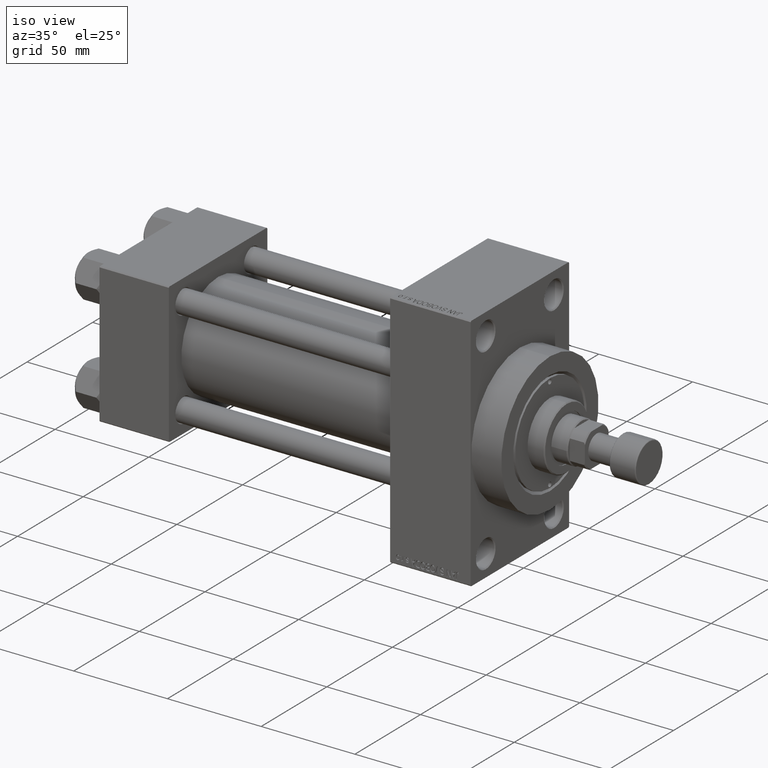
[diagram: clean part render]
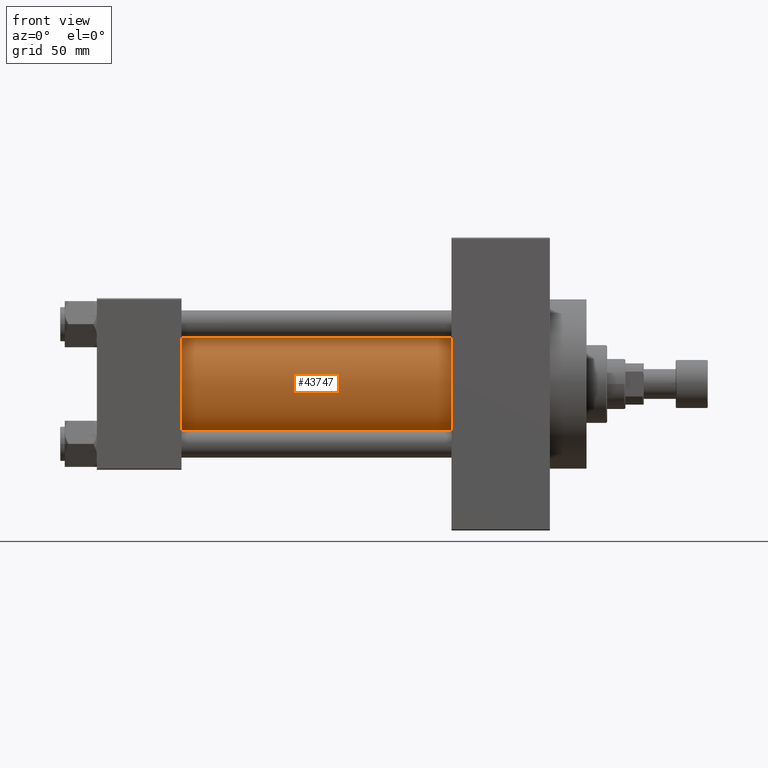
[diagram: tour spotlight — one face highlighted and labeled with its STEP entity id]
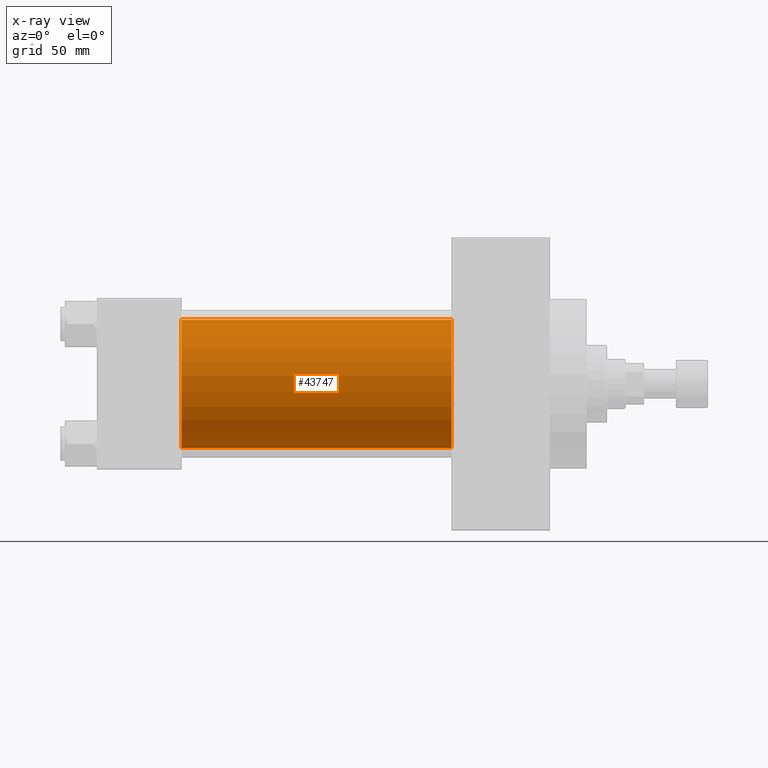
[diagram: x-ray of the same camera — body ghosted, this tour face saturated]
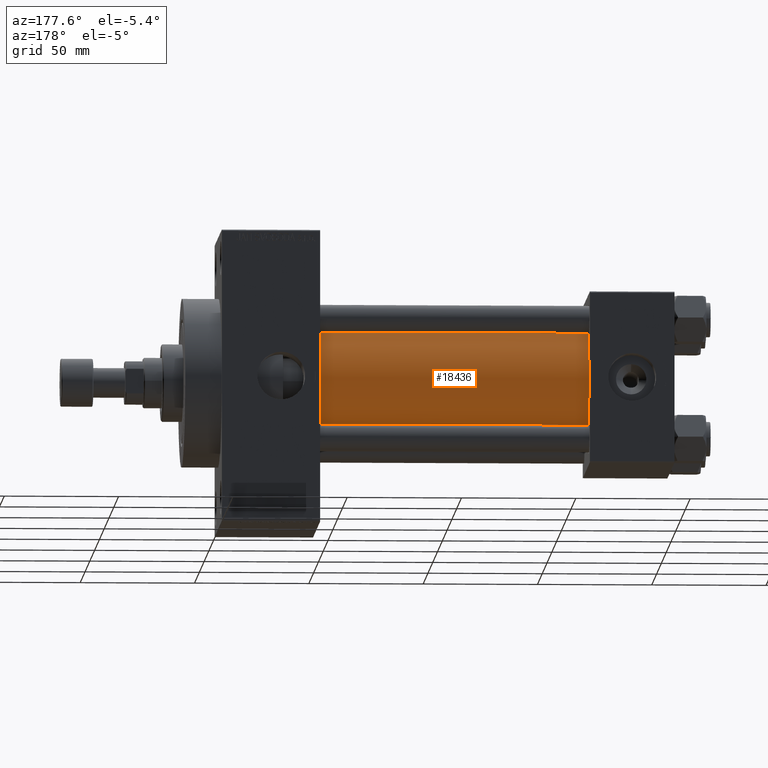
[diagram: tour spotlight — one face highlighted and labeled with its STEP entity id]
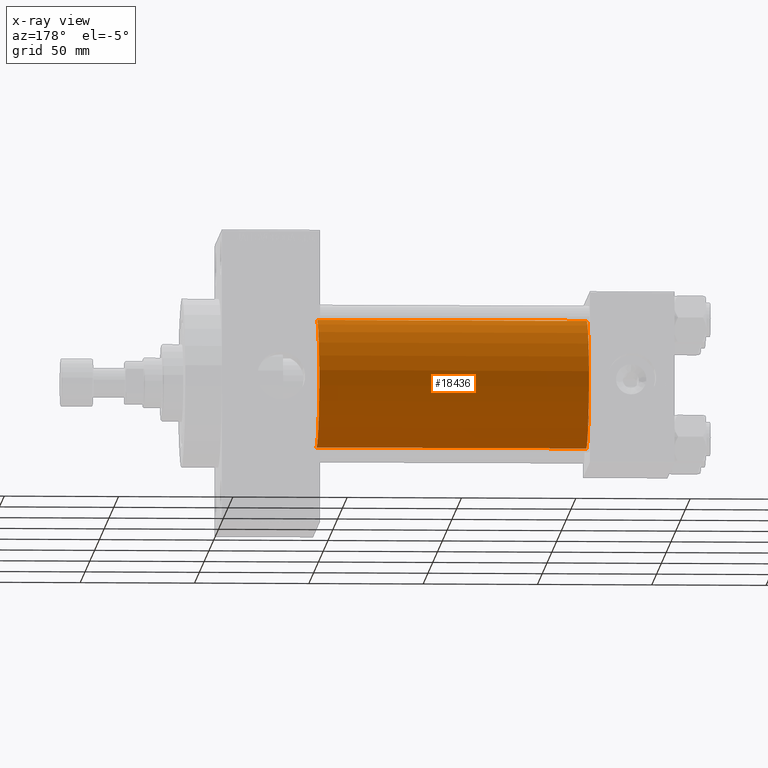
[diagram: x-ray of the same camera — body ghosted, this tour face saturated]
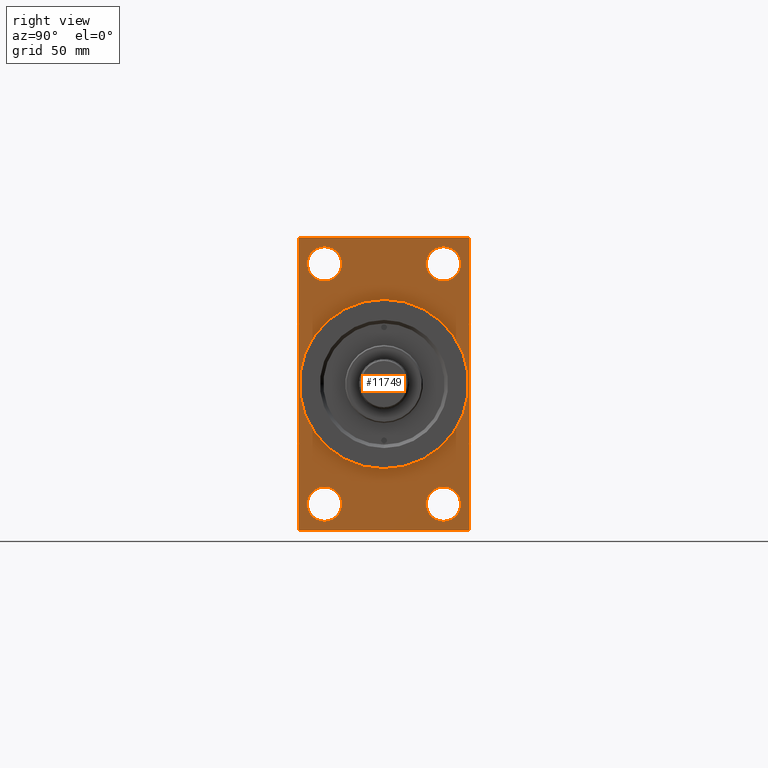
[diagram: tour spotlight — one face highlighted and labeled with its STEP entity id]
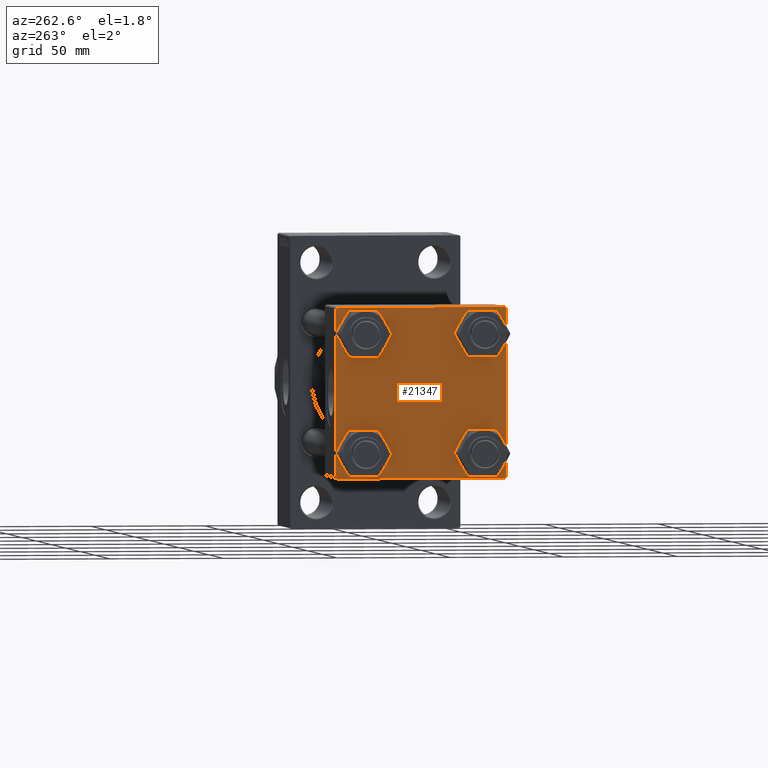
[diagram: tour spotlight — one face highlighted and labeled with its STEP entity id]
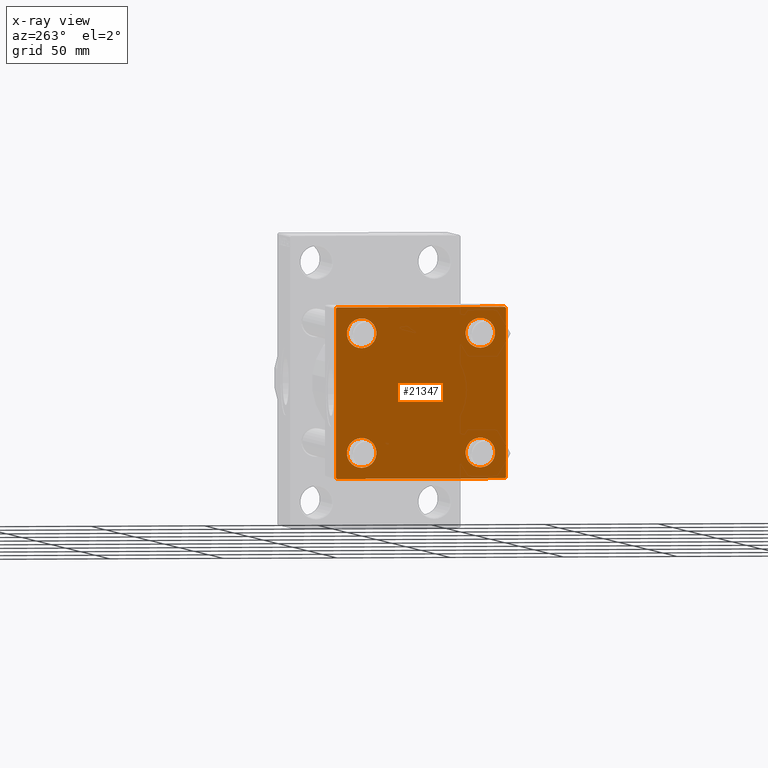
[diagram: x-ray of the same camera — body ghosted, this tour face saturated]
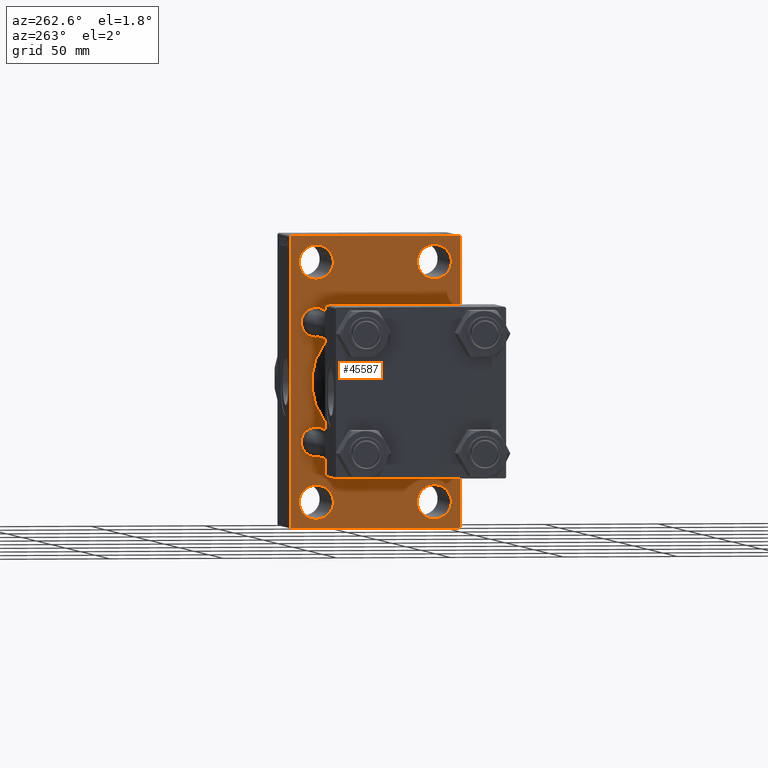
[diagram: tour spotlight — one face highlighted and labeled with its STEP entity id]
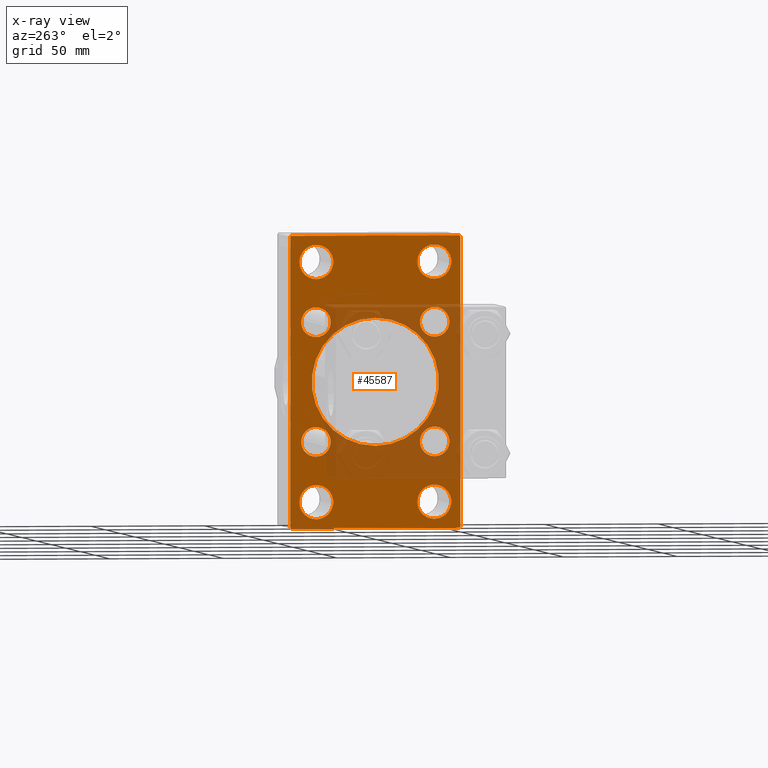
[diagram: x-ray of the same camera — body ghosted, this tour face saturated]
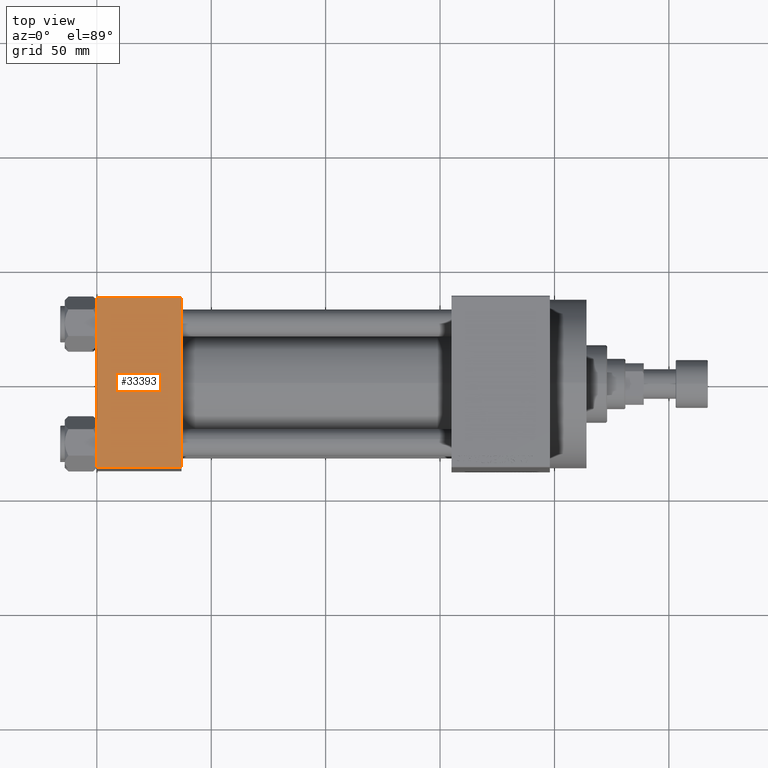
[diagram: tour spotlight — one face highlighted and labeled with its STEP entity id]
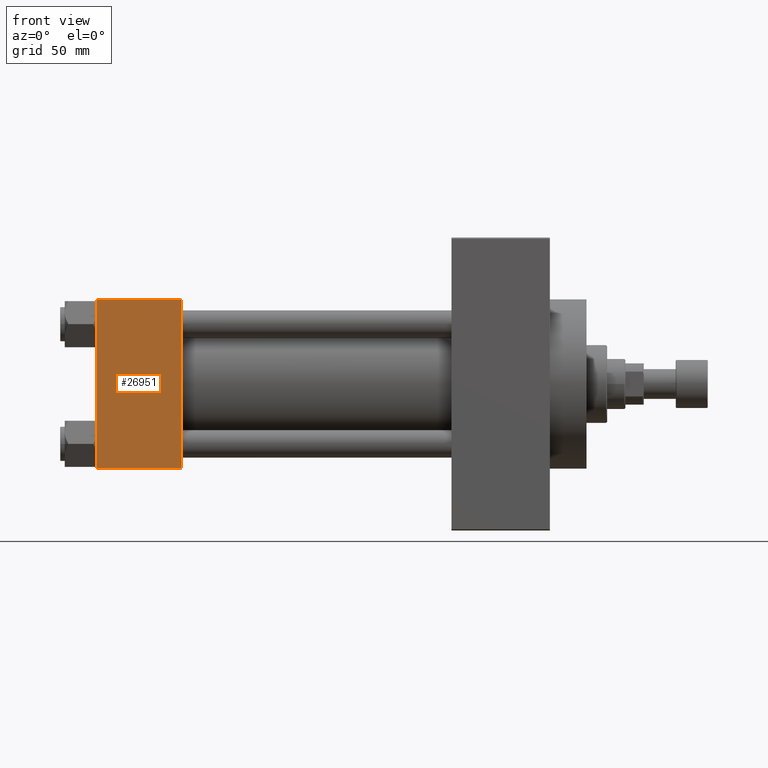
[diagram: tour spotlight — one face highlighted and labeled with its STEP entity id]
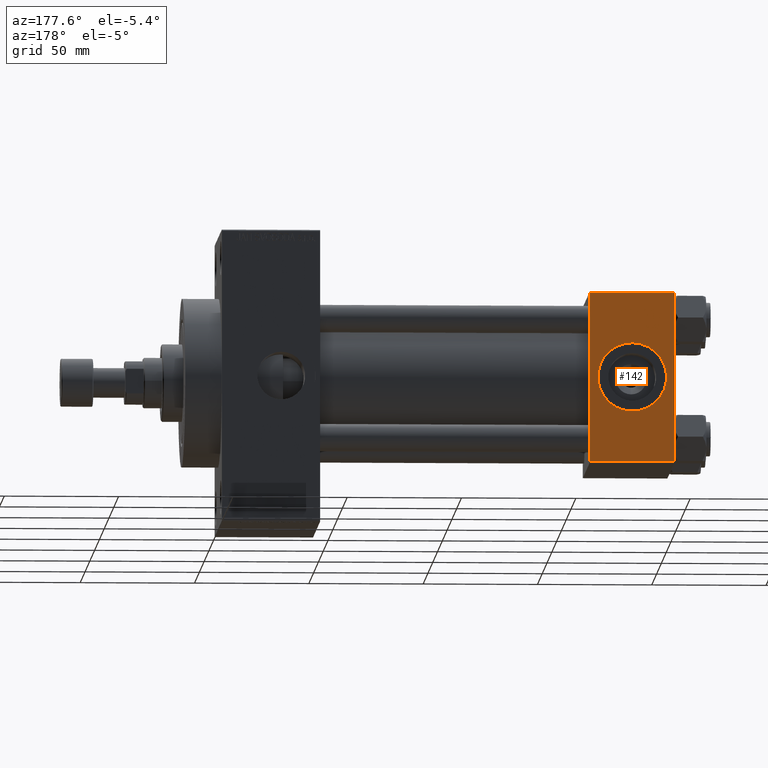
[diagram: tour spotlight — one face highlighted and labeled with its STEP entity id]
A machine part: a face-by-face anatomy tour. The part has 1123 B-rep faces; the first image is the clean iso view, then the 8 largest visible faces are spotlighted one at a time (largest first), each with its STEP entity span.

Face 1 — front view, entity #43747. An x-ray twin of the same camera follows (body ghosted, this face saturated) — the face is partly hidden behind the body. In plain terms, the highlighted cylindrical surface (partial cylindrical patch) has radius 28 mm, axis along (-1, -0, -0).
Definition (entity closure, byte-faithful):
#1759 = VERTEX_POINT ( 'NONE', #34819 ) ;
#2931 = DIRECTION ( 'NONE',  ( -1.000000000000000000, -0.000000000000000000, -0.000000000000000000 ) ) ;
#3623 = CIRCLE ( 'NONE', #30651, 28.00000000000000000 ) ;
#4489 = EDGE_CURVE ( 'NONE', #43214, #12751, #31268, .T. ) ;
#5433 = DIRECTION ( 'NONE',  ( 0.000000000000000000, 0.000000000000000000, 1.000000000000000000 ) ) ;
#6572 = LINE ( 'NONE', #40149, #31454 ) ;
#8498 = CIRCLE ( 'NONE', #15447, 28.00000000000000000 ) ;
#9044 = FACE_OUTER_BOUND ( 'NONE', #25966, .T. ) ;
#9632 = ORIENTED_EDGE ( 'NONE', *, *, #44459, .T. ) ;
#10615 = CARTESIAN_POINT ( 'NONE',  ( 155.0000000000000000, -2.602085213965210642E-15, 0.000000000000000000 ) ) ;
#11513 = CARTESIAN_POINT ( 'NONE',  ( 155.0000000000000000, 8.269258236473784371E-16, -28.00000000000000000 ) ) ;
#12751 = VERTEX_POINT ( 'NONE', #26773 ) ;
#13336 = CARTESIAN_POINT ( 'NONE',  ( 155.0000000000000000, 8.269258236473784371E-16, -28.00000000000000000 ) ) ;
#15447 = AXIS2_PLACEMENT_3D ( 'NONE', #10615, #25603, #40340 ) ;
#15702 = ORIENTED_EDGE ( 'NONE', *, *, #27170, .T. ) ;
#19152 = VERTEX_POINT ( 'NONE', #43061 ) ;
#21364 = AXIS2_PLACEMENT_3D ( 'NONE', #35139, #31536, #5433 ) ;
#23140 = CARTESIAN_POINT ( 'NONE',  ( 37.00000000000000711, -2.602085213965210642E-15, 0.000000000000000000 ) ) ;
#23794 = CYLINDRICAL_SURFACE ( 'NONE', #21364, 28.00000000000000000 ) ;
#25603 = DIRECTION ( 'NONE',  ( 1.000000000000000000, 0.000000000000000000, 0.000000000000000000 ) ) ;
#25966 = EDGE_LOOP ( 'NONE', ( #29650, #43569, #15702, #9632 ) ) ;
#26773 = CARTESIAN_POINT ( 'NONE',  ( 37.00000000000000711, 8.269258236473784371E-16, -28.00000000000000000 ) ) ;
#27170 = EDGE_CURVE ( 'NONE', #19152, #1759, #6572, .T. ) ;
#28339 = DIRECTION ( 'NONE',  ( -1.000000000000000000, -0.000000000000000000, -0.000000000000000000 ) ) ;
#29650 = ORIENTED_EDGE ( 'NONE', *, *, #4489, .F. ) ;
#29906 = DIRECTION ( 'NONE',  ( 0.000000000000000000, 0.000000000000000000, 1.000000000000000000 ) ) ;
#30651 = AXIS2_PLACEMENT_3D ( 'NONE', #23140, #34250, #29906 ) ;
#31268 = LINE ( 'NONE', #13336, #36423 ) ;
#31454 = VECTOR ( 'NONE', #2931, 1000.000000000000000 ) ;
#31536 = DIRECTION ( 'NONE',  ( -1.000000000000000000, -0.000000000000000000, -0.000000000000000000 ) ) ;
#34250 = DIRECTION ( 'NONE',  ( 1.000000000000000000, -0.000000000000000000, 0.000000000000000000 ) ) ;
#34819 = CARTESIAN_POINT ( 'NONE',  ( 37.00000000000000711, -2.602085213965210642E-15, 28.00000000000000000 ) ) ;
#35139 = CARTESIAN_POINT ( 'NONE',  ( 155.0000000000000000, -2.602085213965210642E-15, 0.000000000000000000 ) ) ;
#35772 = EDGE_CURVE ( 'NONE', #19152, #43214, #8498, .T. ) ;
#36423 = VECTOR ( 'NONE', #28339, 1000.000000000000000 ) ;
#40149 = CARTESIAN_POINT ( 'NONE',  ( 155.0000000000000000, -2.602085213965210642E-15, 28.00000000000000000 ) ) ;
#40340 = DIRECTION ( 'NONE',  ( 0.000000000000000000, 0.000000000000000000, -1.000000000000000000 ) ) ;
#43061 = CARTESIAN_POINT ( 'NONE',  ( 155.0000000000000000, -2.602085213965210642E-15, 28.00000000000000000 ) ) ;
#43214 = VERTEX_POINT ( 'NONE', #11513 ) ;
#43569 = ORIENTED_EDGE ( 'NONE', *, *, #35772, .F. ) ;
#43747 = ADVANCED_FACE ( 'NONE', ( #9044 ), #23794, .T. ) ;
#44459 = EDGE_CURVE ( 'NONE', #1759, #12751, #3623, .T. ) ;

Face 2 — auxiliary view, entity #18436. An x-ray twin of the same camera follows (body ghosted, this face saturated) — the face is partly hidden behind the body. In plain terms, the highlighted cylindrical surface (partial cylindrical patch) has radius 28 mm, axis along (-1, -0, -0).
Definition (entity closure, byte-faithful):
#237 = EDGE_CURVE ( 'NONE', #43214, #19152, #21766, .T. ) ;
#1759 = VERTEX_POINT ( 'NONE', #34819 ) ;
#2931 = DIRECTION ( 'NONE',  ( -1.000000000000000000, -0.000000000000000000, -0.000000000000000000 ) ) ;
#3009 = DIRECTION ( 'NONE',  ( 0.000000000000000000, 0.000000000000000000, 1.000000000000000000 ) ) ;
#3483 = CARTESIAN_POINT ( 'NONE',  ( 37.00000000000000711, -2.602085213965210642E-15, 0.000000000000000000 ) ) ;
#3552 = FACE_OUTER_BOUND ( 'NONE', #38648, .T. ) ;
#3791 = DIRECTION ( 'NONE',  ( 0.000000000000000000, 0.000000000000000000, 1.000000000000000000 ) ) ;
#4489 = EDGE_CURVE ( 'NONE', #43214, #12751, #31268, .T. ) ;
#6572 = LINE ( 'NONE', #40149, #31454 ) ;
#11513 = CARTESIAN_POINT ( 'NONE',  ( 155.0000000000000000, 8.269258236473784371E-16, -28.00000000000000000 ) ) ;
#12751 = VERTEX_POINT ( 'NONE', #26773 ) ;
#13336 = CARTESIAN_POINT ( 'NONE',  ( 155.0000000000000000, 8.269258236473784371E-16, -28.00000000000000000 ) ) ;
#14658 = DIRECTION ( 'NONE',  ( -1.000000000000000000, -0.000000000000000000, -0.000000000000000000 ) ) ;
#18436 = ADVANCED_FACE ( 'NONE', ( #3552 ), #33044, .T. ) ;
#19152 = VERTEX_POINT ( 'NONE', #43061 ) ;
#21766 = CIRCLE ( 'NONE', #34081, 28.00000000000000000 ) ;
#26773 = CARTESIAN_POINT ( 'NONE',  ( 37.00000000000000711, 8.269258236473784371E-16, -28.00000000000000000 ) ) ;
#27170 = EDGE_CURVE ( 'NONE', #19152, #1759, #6572, .T. ) ;
#27948 = EDGE_CURVE ( 'NONE', #12751, #1759, #31487, .T. ) ;
#28339 = DIRECTION ( 'NONE',  ( -1.000000000000000000, -0.000000000000000000, -0.000000000000000000 ) ) ;
#31268 = LINE ( 'NONE', #13336, #36423 ) ;
#31454 = VECTOR ( 'NONE', #2931, 1000.000000000000000 ) ;
#31487 = CIRCLE ( 'NONE', #33781, 28.00000000000000000 ) ;
#32741 = DIRECTION ( 'NONE',  ( 1.000000000000000000, -0.000000000000000000, 0.000000000000000000 ) ) ;
#33044 = CYLINDRICAL_SURFACE ( 'NONE', #43727, 28.00000000000000000 ) ;
#33781 = AXIS2_PLACEMENT_3D ( 'NONE', #3483, #32741, #3009 ) ;
#34081 = AXIS2_PLACEMENT_3D ( 'NONE', #43602, #42654, #35396 ) ;
#34819 = CARTESIAN_POINT ( 'NONE',  ( 37.00000000000000711, -2.602085213965210642E-15, 28.00000000000000000 ) ) ;
#35396 = DIRECTION ( 'NONE',  ( 0.000000000000000000, 0.000000000000000000, -1.000000000000000000 ) ) ;
#35626 = ORIENTED_EDGE ( 'NONE', *, *, #4489, .T. ) ;
#36423 = VECTOR ( 'NONE', #28339, 1000.000000000000000 ) ;
#38648 = EDGE_LOOP ( 'NONE', ( #47420, #35626, #41132, #46659 ) ) ;
#40149 = CARTESIAN_POINT ( 'NONE',  ( 155.0000000000000000, -2.602085213965210642E-15, 28.00000000000000000 ) ) ;
#41132 = ORIENTED_EDGE ( 'NONE', *, *, #27948, .T. ) ;
#42654 = DIRECTION ( 'NONE',  ( 1.000000000000000000, 0.000000000000000000, 0.000000000000000000 ) ) ;
#43061 = CARTESIAN_POINT ( 'NONE',  ( 155.0000000000000000, -2.602085213965210642E-15, 28.00000000000000000 ) ) ;
#43214 = VERTEX_POINT ( 'NONE', #11513 ) ;
#43602 = CARTESIAN_POINT ( 'NONE',  ( 155.0000000000000000, -2.602085213965210642E-15, 0.000000000000000000 ) ) ;
#43727 = AXIS2_PLACEMENT_3D ( 'NONE', #44635, #14658, #3791 ) ;
#44635 = CARTESIAN_POINT ( 'NONE',  ( 155.0000000000000000, -2.602085213965210642E-15, 0.000000000000000000 ) ) ;
#46659 = ORIENTED_EDGE ( 'NONE', *, *, #27170, .F. ) ;
#47420 = ORIENTED_EDGE ( 'NONE', *, *, #237, .F. ) ;

Face 3 — right view, entity #11749. In plain terms, the highlighted planar face has unit normal (-1, 0, 0).
Definition (entity closure, byte-faithful):
#158 = VECTOR ( 'NONE', #12320, 1000.000000000000000 ) ;
#232 = DIRECTION ( 'NONE',  ( -0.000000000000000000, 0.000000000000000000, 1.000000000000000000 ) ) ;
#467 = EDGE_CURVE ( 'NONE', #28952, #37104, #41055, .T. ) ;
#697 = EDGE_CURVE ( 'NONE', #7361, #4670, #11597, .T. ) ;
#1083 = VERTEX_POINT ( 'NONE', #11540 ) ;
#1342 = CARTESIAN_POINT ( 'NONE',  ( 198.0000000000000000, 26.00000000000000000, -52.49999999999999289 ) ) ;
#1905 = DIRECTION ( 'NONE',  ( 0.000000000000000000, 0.000000000000000000, 1.000000000000000000 ) ) ;
#2230 = VERTEX_POINT ( 'NONE', #29173 ) ;
#2534 = EDGE_CURVE ( 'NONE', #25538, #14047, #41167, .T. ) ;
#2658 = DIRECTION ( 'NONE',  ( 0.000000000000000000, 0.000000000000000000, -1.000000000000000000 ) ) ;
#2727 = CARTESIAN_POINT ( 'NONE',  ( 198.0000000000000000, 26.00000000000000000, 52.49999999999999289 ) ) ;
#2833 = CARTESIAN_POINT ( 'NONE',  ( 198.0000000000000000, -25.99999999999999645, 59.99999999999997868 ) ) ;
#2864 = EDGE_CURVE ( 'NONE', #47336, #37300, #15409, .T. ) ;
#3867 = FACE_BOUND ( 'NONE', #19176, .T. ) ;
#3908 = ORIENTED_EDGE ( 'NONE', *, *, #30985, .T. ) ;
#4179 = VERTEX_POINT ( 'NONE', #22578 ) ;
#4332 = VERTEX_POINT ( 'NONE', #33934 ) ;
#4670 = VERTEX_POINT ( 'NONE', #12097 ) ;
#4818 = CARTESIAN_POINT ( 'NONE',  ( 198.0000000000000000, -37.00000000000001421, 63.99999999999997158 ) ) ;
#5393 = DIRECTION ( 'NONE',  ( 0.000000000000000000, 0.000000000000000000, 1.000000000000000000 ) ) ;
#5907 = CARTESIAN_POINT ( 'NONE',  ( 198.0000000000000000, 37.00000000000000000, 63.99999999999998579 ) ) ;
#6155 = CARTESIAN_POINT ( 'NONE',  ( 198.0000000000000000, -37.49999999999999289, 63.99999999999997158 ) ) ;
#6161 = EDGE_CURVE ( 'NONE', #47336, #33194, #12794, .T. ) ;
#6476 = ORIENTED_EDGE ( 'NONE', *, *, #697, .T. ) ;
#6897 = EDGE_CURVE ( 'NONE', #37104, #28952, #41922, .T. ) ;
#7313 = EDGE_CURVE ( 'NONE', #14047, #7361, #40582, .T. ) ;
#7361 = VERTEX_POINT ( 'NONE', #4818 ) ;
#7495 = FACE_BOUND ( 'NONE', #37058, .T. ) ;
#7736 = AXIS2_PLACEMENT_3D ( 'NONE', #1342, #46072, #30846 ) ;
#7739 = FACE_BOUND ( 'NONE', #31808, .T. ) ;
#7779 = CARTESIAN_POINT ( 'NONE',  ( 198.0000000000000000, -25.99999999999999645, -59.99999999999997158 ) ) ;
#8264 = DIRECTION ( 'NONE',  ( 0.000000000000000000, 0.7071067811865573427, -0.7071067811865378028 ) ) ;
#9155 = VECTOR ( 'NONE', #21602, 1000.000000000000000 ) ;
#9587 = DIRECTION ( 'NONE',  ( -1.000000000000000000, 0.000000000000000000, -0.000000000000000000 ) ) ;
#9726 = EDGE_LOOP ( 'NONE', ( #22157, #3908 ) ) ;
#9739 = AXIS2_PLACEMENT_3D ( 'NONE', #2727, #17479, #32226 ) ;
#10178 = ORIENTED_EDGE ( 'NONE', *, *, #2534, .T. ) ;
#10281 = ORIENTED_EDGE ( 'NONE', *, *, #35481, .T. ) ;
#10679 = ORIENTED_EDGE ( 'NONE', *, *, #42030, .F. ) ;
#11540 = CARTESIAN_POINT ( 'NONE',  ( 198.0000000000000000, -37.49999999999999289, -63.50000000000002842 ) ) ;
#11597 = LINE ( 'NONE', #41108, #158 ) ;
#11749 = ADVANCED_FACE ( 'NONE', ( #7739, #7495, #22238, #36970, #3867, #33584 ), #18614, .F. ) ;
#11868 = CARTESIAN_POINT ( 'NONE',  ( 198.0000000000000000, -36.99999999999999289, -64.00000000000001421 ) ) ;
#12003 = ORIENTED_EDGE ( 'NONE', *, *, #18672, .T. ) ;
#12097 = CARTESIAN_POINT ( 'NONE',  ( 198.0000000000000000, -37.49999999999999289, 63.50000000000000000 ) ) ;
#12320 = DIRECTION ( 'NONE',  ( -0.000000000000000000, -0.7071067811865524577, -0.7071067811865426878 ) ) ;
#12794 = LINE ( 'NONE', #41833, #13318 ) ;
#13175 = ORIENTED_EDGE ( 'NONE', *, *, #467, .T. ) ;
#13269 = CARTESIAN_POINT ( 'NONE',  ( 198.0000000000000000, 26.00000000000000000, 59.99999999999997158 ) ) ;
#13318 = VECTOR ( 'NONE', #26856, 1000.000000000000000 ) ;
#13482 = AXIS2_PLACEMENT_3D ( 'NONE', #25390, #33350, #232 ) ;
#13587 = CIRCLE ( 'NONE', #9739, 7.499999999999978684 ) ;
#13922 = CIRCLE ( 'NONE', #19366, 7.499999999999978684 ) ;
#13929 = ORIENTED_EDGE ( 'NONE', *, *, #36927, .T. ) ;
#14047 = VERTEX_POINT ( 'NONE', #5907 ) ;
#14480 = AXIS2_PLACEMENT_3D ( 'NONE', #16837, #9587, #31600 ) ;
#15243 = CARTESIAN_POINT ( 'NONE',  ( 198.0000000000000000, 26.00000000000000000, 52.49999999999999289 ) ) ;
#15254 = CARTESIAN_POINT ( 'NONE',  ( 198.0000000000000000, 26.00000000000000000, 45.00000000000001421 ) ) ;
#15259 = LINE ( 'NONE', #11868, #34444 ) ;
#15384 = EDGE_CURVE ( 'NONE', #25538, #37300, #22496, .T. ) ;
#15409 = LINE ( 'NONE', #45390, #43365 ) ;
#16102 = CARTESIAN_POINT ( 'NONE',  ( 198.0000000000000000, 37.49999999999999289, -63.50000000000001421 ) ) ;
#16224 = EDGE_LOOP ( 'NONE', ( #33082, #10281 ) ) ;
#16837 = CARTESIAN_POINT ( 'NONE',  ( 198.0000000000000000, 26.00000000000000000, -52.49999999999999289 ) ) ;
#16891 = DIRECTION ( 'NONE',  ( -1.000000000000000000, 0.000000000000000000, -0.000000000000000000 ) ) ;
#16964 = VERTEX_POINT ( 'NONE', #13269 ) ;
#16979 = CIRCLE ( 'NONE', #37018, 7.499999999999978684 ) ;
#17479 = DIRECTION ( 'NONE',  ( -1.000000000000000000, 0.000000000000000000, -0.000000000000000000 ) ) ;
#18363 = CIRCLE ( 'NONE', #24529, 7.499999999999978684 ) ;
#18553 = DIRECTION ( 'NONE',  ( 0.000000000000000000, 0.000000000000000000, -1.000000000000000000 ) ) ;
#18614 = PLANE ( 'NONE',  #13482 ) ;
#18672 = EDGE_CURVE ( 'NONE', #1083, #33194, #15259, .T. ) ;
#19136 = DIRECTION ( 'NONE',  ( 0.000000000000000000, 0.000000000000000000, 1.000000000000000000 ) ) ;
#19176 = EDGE_LOOP ( 'NONE', ( #10679, #36823 ) ) ;
#19366 = AXIS2_PLACEMENT_3D ( 'NONE', #33158, #40891, #22045 ) ;
#19660 = CARTESIAN_POINT ( 'NONE',  ( 198.0000000000000000, -25.99999999999999645, 52.50000000000000000 ) ) ;
#21602 = DIRECTION ( 'NONE',  ( 0.000000000000000000, 0.000000000000000000, -1.000000000000000000 ) ) ;
#21958 = CARTESIAN_POINT ( 'NONE',  ( 198.0000000000000000, -36.99999999999999289, -64.00000000000001421 ) ) ;
#22045 = DIRECTION ( 'NONE',  ( 0.000000000000000000, 0.000000000000000000, 1.000000000000000000 ) ) ;
#22157 = ORIENTED_EDGE ( 'NONE', *, *, #36524, .T. ) ;
#22238 = FACE_BOUND ( 'NONE', #9726, .T. ) ;
#22496 = LINE ( 'NONE', #36986, #29833 ) ;
#22578 = CARTESIAN_POINT ( 'NONE',  ( 198.0000000000000000, 26.00000000000000000, -59.99999999999997158 ) ) ;
#22655 = CARTESIAN_POINT ( 'NONE',  ( 198.0000000000000000, 0.000000000000000000, 0.000000000000000000 ) ) ;
#22750 = DIRECTION ( 'NONE',  ( 0.000000000000000000, 0.000000000000000000, 1.000000000000000000 ) ) ;
#24529 = AXIS2_PLACEMENT_3D ( 'NONE', #32118, #16891, #1905 ) ;
#24700 = EDGE_LOOP ( 'NONE', ( #40307, #12003, #27870, #37001, #35017, #10178, #44879, #6476 ) ) ;
#24835 = AXIS2_PLACEMENT_3D ( 'NONE', #19660, #41409, #5393 ) ;
#25390 = CARTESIAN_POINT ( 'NONE',  ( 198.0000000000000000, 0.000000000000000000, 0.000000000000000000 ) ) ;
#25466 = LINE ( 'NONE', #6155, #9155 ) ;
#25538 = VERTEX_POINT ( 'NONE', #43647 ) ;
#26856 = DIRECTION ( 'NONE',  ( 0.000000000000000000, -1.000000000000000000, -1.850371707708594563E-16 ) ) ;
#27253 = AXIS2_PLACEMENT_3D ( 'NONE', #37257, #37493, #19136 ) ;
#27571 = CARTESIAN_POINT ( 'NONE',  ( 198.0000000000000000, -25.99999999999999645, 45.00000000000002132 ) ) ;
#27870 = ORIENTED_EDGE ( 'NONE', *, *, #6161, .F. ) ;
#28253 = AXIS2_PLACEMENT_3D ( 'NONE', #22655, #47340, #18553 ) ;
#28406 = VERTEX_POINT ( 'NONE', #7779 ) ;
#28952 = VERTEX_POINT ( 'NONE', #2833 ) ;
#29060 = CIRCLE ( 'NONE', #28253, 37.00000000000000000 ) ;
#29173 = CARTESIAN_POINT ( 'NONE',  ( 198.0000000000000000, 4.531193156845206793E-15, -37.00000000000000000 ) ) ;
#29792 = CARTESIAN_POINT ( 'NONE',  ( 198.0000000000000000, -25.99999999999999645, -45.00000000000001421 ) ) ;
#29833 = VECTOR ( 'NONE', #29984, 1000.000000000000000 ) ;
#29984 = DIRECTION ( 'NONE',  ( 0.000000000000000000, -5.421010862427522170E-17, -1.000000000000000000 ) ) ;
#30846 = DIRECTION ( 'NONE',  ( 0.000000000000000000, 0.000000000000000000, 1.000000000000000000 ) ) ;
#30947 = CARTESIAN_POINT ( 'NONE',  ( 198.0000000000000000, 0.000000000000000000, 37.00000000000000000 ) ) ;
#30985 = EDGE_CURVE ( 'NONE', #4332, #4179, #32233, .T. ) ;
#31130 = DIRECTION ( 'NONE',  ( -0.000000000000000000, 0.7071067811865376918, 0.7071067811865573427 ) ) ;
#31156 = VECTOR ( 'NONE', #33571, 1000.000000000000000 ) ;
#31494 = VERTEX_POINT ( 'NONE', #29792 ) ;
#31600 = DIRECTION ( 'NONE',  ( 0.000000000000000000, 0.000000000000000000, 1.000000000000000000 ) ) ;
#31808 = EDGE_LOOP ( 'NONE', ( #38371, #13175 ) ) ;
#32035 = EDGE_CURVE ( 'NONE', #31494, #28406, #18363, .T. ) ;
#32118 = CARTESIAN_POINT ( 'NONE',  ( 198.0000000000000000, -25.99999999999999645, -52.49999999999999289 ) ) ;
#32226 = DIRECTION ( 'NONE',  ( 0.000000000000000000, 0.000000000000000000, 1.000000000000000000 ) ) ;
#32233 = CIRCLE ( 'NONE', #14480, 7.499999999999978684 ) ;
#32483 = EDGE_CURVE ( 'NONE', #4670, #1083, #25466, .T. ) ;
#33082 = ORIENTED_EDGE ( 'NONE', *, *, #42894, .T. ) ;
#33158 = CARTESIAN_POINT ( 'NONE',  ( 198.0000000000000000, -25.99999999999999645, -52.49999999999999289 ) ) ;
#33194 = VERTEX_POINT ( 'NONE', #21958 ) ;
#33271 = CARTESIAN_POINT ( 'NONE',  ( 198.0000000000000000, 37.00000000000002132, -64.00000000000000000 ) ) ;
#33350 = DIRECTION ( 'NONE',  ( -1.000000000000000000, 0.000000000000000000, -0.000000000000000000 ) ) ;
#33571 = DIRECTION ( 'NONE',  ( 0.000000000000000000, -1.000000000000000000, -1.850371707708594563E-16 ) ) ;
#33584 = FACE_OUTER_BOUND ( 'NONE', #24700, .T. ) ;
#33934 = CARTESIAN_POINT ( 'NONE',  ( 198.0000000000000000, 26.00000000000000000, -45.00000000000001421 ) ) ;
#33989 = CIRCLE ( 'NONE', #7736, 7.499999999999978684 ) ;
#34444 = VECTOR ( 'NONE', #8264, 1000.000000000000000 ) ;
#35017 = ORIENTED_EDGE ( 'NONE', *, *, #15384, .F. ) ;
#35066 = CIRCLE ( 'NONE', #38931, 37.00000000000000000 ) ;
#35481 = EDGE_CURVE ( 'NONE', #16964, #36957, #16979, .T. ) ;
#35771 = DIRECTION ( 'NONE',  ( 1.000000000000000000, 0.000000000000000000, 0.000000000000000000 ) ) ;
#36524 = EDGE_CURVE ( 'NONE', #4179, #4332, #33989, .T. ) ;
#36823 = ORIENTED_EDGE ( 'NONE', *, *, #43208, .F. ) ;
#36927 = EDGE_CURVE ( 'NONE', #28406, #31494, #13922, .T. ) ;
#36957 = VERTEX_POINT ( 'NONE', #15254 ) ;
#36970 = FACE_BOUND ( 'NONE', #16224, .T. ) ;
#36986 = CARTESIAN_POINT ( 'NONE',  ( 198.0000000000000000, 37.50000000000000000, 63.99999999999998579 ) ) ;
#37001 = ORIENTED_EDGE ( 'NONE', *, *, #2864, .T. ) ;
#37018 = AXIS2_PLACEMENT_3D ( 'NONE', #15243, #44743, #22750 ) ;
#37058 = EDGE_LOOP ( 'NONE', ( #13929, #45804 ) ) ;
#37104 = VERTEX_POINT ( 'NONE', #27571 ) ;
#37203 = CARTESIAN_POINT ( 'NONE',  ( 198.0000000000000000, 37.50000000000000000, 63.99999999999998579 ) ) ;
#37257 = CARTESIAN_POINT ( 'NONE',  ( 198.0000000000000000, -25.99999999999999645, 52.50000000000000000 ) ) ;
#37300 = VERTEX_POINT ( 'NONE', #16102 ) ;
#37493 = DIRECTION ( 'NONE',  ( -1.000000000000000000, 0.000000000000000000, -0.000000000000000000 ) ) ;
#38371 = ORIENTED_EDGE ( 'NONE', *, *, #6897, .T. ) ;
#38931 = AXIS2_PLACEMENT_3D ( 'NONE', #46678, #35771, #2658 ) ;
#40307 = ORIENTED_EDGE ( 'NONE', *, *, #32483, .T. ) ;
#40582 = LINE ( 'NONE', #37203, #31156 ) ;
#40891 = DIRECTION ( 'NONE',  ( -1.000000000000000000, 0.000000000000000000, -0.000000000000000000 ) ) ;
#40926 = DIRECTION ( 'NONE',  ( 0.000000000000000000, -0.7071067811865474617, 0.7071067811865474617 ) ) ;
#41055 = CIRCLE ( 'NONE', #24835, 7.499999999999978684 ) ;
#41108 = CARTESIAN_POINT ( 'NONE',  ( 198.0000000000000000, -37.49999999999999289, 63.50000000000000000 ) ) ;
#41125 = VECTOR ( 'NONE', #40926, 1000.000000000000114 ) ;
#41167 = LINE ( 'NONE', #44791, #41125 ) ;
#41409 = DIRECTION ( 'NONE',  ( -1.000000000000000000, 0.000000000000000000, -0.000000000000000000 ) ) ;
#41833 = CARTESIAN_POINT ( 'NONE',  ( 198.0000000000000000, 37.49999999999999289, -64.00000000000000000 ) ) ;
#41922 = CIRCLE ( 'NONE', #27253, 7.499999999999978684 ) ;
#42030 = EDGE_CURVE ( 'NONE', #47061, #2230, #35066, .T. ) ;
#42894 = EDGE_CURVE ( 'NONE', #36957, #16964, #13587, .T. ) ;
#43208 = EDGE_CURVE ( 'NONE', #2230, #47061, #29060, .T. ) ;
#43365 = VECTOR ( 'NONE', #31130, 1000.000000000000114 ) ;
#43647 = CARTESIAN_POINT ( 'NONE',  ( 198.0000000000000000, 37.50000000000000000, 63.49999999999998579 ) ) ;
#44743 = DIRECTION ( 'NONE',  ( -1.000000000000000000, 0.000000000000000000, -0.000000000000000000 ) ) ;
#44791 = CARTESIAN_POINT ( 'NONE',  ( 198.0000000000000000, 37.00000000000000000, 63.99999999999998579 ) ) ;
#44879 = ORIENTED_EDGE ( 'NONE', *, *, #7313, .T. ) ;
#45390 = CARTESIAN_POINT ( 'NONE',  ( 198.0000000000000000, 37.49999999999999289, -63.50000000000001421 ) ) ;
#45804 = ORIENTED_EDGE ( 'NONE', *, *, #32035, .T. ) ;
#46072 = DIRECTION ( 'NONE',  ( -1.000000000000000000, 0.000000000000000000, -0.000000000000000000 ) ) ;
#46678 = CARTESIAN_POINT ( 'NONE',  ( 198.0000000000000000, 0.000000000000000000, 0.000000000000000000 ) ) ;
#47061 = VERTEX_POINT ( 'NONE', #30947 ) ;
#47336 = VERTEX_POINT ( 'NONE', #33271 ) ;
#47340 = DIRECTION ( 'NONE',  ( 1.000000000000000000, 0.000000000000000000, 0.000000000000000000 ) ) ;

Face 4 — auxiliary view, entity #21347. An x-ray twin of the same camera follows (body ghosted, this face saturated) — the face is partly hidden behind the body. In plain terms, the highlighted planar face has unit normal (-1, 0, 0).
Definition (entity closure, byte-faithful):
#290 = ORIENTED_EDGE ( 'NONE', *, *, #18155, .T. ) ;
#524 = CARTESIAN_POINT ( 'NONE',  ( -0.000000000000000000, -37.25000000000000000, 37.25000000000000000 ) ) ;
#532 = DIRECTION ( 'NONE',  ( 0.000000000000000000, -1.000000000000000000, -9.251858538542972814E-17 ) ) ;
#655 = VERTEX_POINT ( 'NONE', #19117 ) ;
#844 = ORIENTED_EDGE ( 'NONE', *, *, #21509, .T. ) ;
#1163 = VERTEX_POINT ( 'NONE', #32263 ) ;
#1441 = CIRCLE ( 'NONE', #21532, 6.500000000000015987 ) ;
#1816 = CARTESIAN_POINT ( 'NONE',  ( 0.000000000000000000, -26.14999999999999147, -26.15000000000000924 ) ) ;
#2469 = VERTEX_POINT ( 'NONE', #19421 ) ;
#2730 = LINE ( 'NONE', #46986, #41510 ) ;
#3065 = EDGE_CURVE ( 'NONE', #16032, #33277, #27904, .T. ) ;
#3088 = DIRECTION ( 'NONE',  ( 1.000000000000000000, -0.000000000000000000, 0.000000000000000000 ) ) ;
#3172 = CARTESIAN_POINT ( 'NONE',  ( 0.000000000000000000, -37.00000000000002132, -37.50000000000000711 ) ) ;
#3262 = DIRECTION ( 'NONE',  ( 0.000000000000000000, 0.7071067811865474617, -0.7071067811865474617 ) ) ;
#3415 = DIRECTION ( 'NONE',  ( 0.000000000000000000, -0.7071067811865524577, 0.7071067811865426878 ) ) ;
#3758 = EDGE_CURVE ( 'NONE', #46869, #24311, #46956, .T. ) ;
#4088 = FACE_BOUND ( 'NONE', #11001, .T. ) ;
#4187 = CARTESIAN_POINT ( 'NONE',  ( 0.000000000000000000, 26.14999999999999858, -26.15000000000000213 ) ) ;
#4294 = CARTESIAN_POINT ( 'NONE',  ( 0.000000000000000000, 26.14999999999999858, 19.64999999999998437 ) ) ;
#4962 = VERTEX_POINT ( 'NONE', #21750 ) ;
#5004 = EDGE_LOOP ( 'NONE', ( #46472, #46876 ) ) ;
#6341 = EDGE_LOOP ( 'NONE', ( #10863, #44487, #13400, #39924, #45994, #7628, #36392, #844 ) ) ;
#7104 = ORIENTED_EDGE ( 'NONE', *, *, #33496, .T. ) ;
#7243 = CARTESIAN_POINT ( 'NONE',  ( 0.000000000000000000, 0.000000000000000000, 0.000000000000000000 ) ) ;
#7249 = DIRECTION ( 'NONE',  ( 0.000000000000000000, 0.000000000000000000, 1.000000000000000000 ) ) ;
#7628 = ORIENTED_EDGE ( 'NONE', *, *, #38841, .T. ) ;
#7767 = CARTESIAN_POINT ( 'NONE',  ( 0.000000000000000000, 26.14999999999999858, 26.15000000000000213 ) ) ;
#7867 = LINE ( 'NONE', #30340, #40792 ) ;
#8017 = EDGE_LOOP ( 'NONE', ( #9717, #7104 ) ) ;
#8261 = VECTOR ( 'NONE', #532, 1000.000000000000000 ) ;
#8837 = EDGE_CURVE ( 'NONE', #10674, #27524, #39657, .T. ) ;
#9085 = AXIS2_PLACEMENT_3D ( 'NONE', #7767, #22743, #11600 ) ;
#9717 = ORIENTED_EDGE ( 'NONE', *, *, #23372, .T. ) ;
#10674 = VERTEX_POINT ( 'NONE', #13664 ) ;
#10863 = ORIENTED_EDGE ( 'NONE', *, *, #30523, .T. ) ;
#11001 = EDGE_LOOP ( 'NONE', ( #290, #30922 ) ) ;
#11091 = VERTEX_POINT ( 'NONE', #17540 ) ;
#11222 = CARTESIAN_POINT ( 'NONE',  ( 0.000000000000000000, -37.50000000000000711, 37.49999999999999289 ) ) ;
#11385 = VERTEX_POINT ( 'NONE', #13838 ) ;
#11396 = DIRECTION ( 'NONE',  ( -0.000000000000000000, 0.7071067811865474617, 0.7071067811865474617 ) ) ;
#11554 = DIRECTION ( 'NONE',  ( -0.000000000000000000, 0.000000000000000000, 1.000000000000000000 ) ) ;
#11600 = DIRECTION ( 'NONE',  ( 0.000000000000000000, 0.000000000000000000, 1.000000000000000000 ) ) ;
#11876 = LINE ( 'NONE', #524, #16360 ) ;
#12208 = EDGE_LOOP ( 'NONE', ( #36286, #29568 ) ) ;
#12827 = AXIS2_PLACEMENT_3D ( 'NONE', #29474, #29234, #7249 ) ;
#13088 = AXIS2_PLACEMENT_3D ( 'NONE', #24946, #28818, #19317 ) ;
#13400 = ORIENTED_EDGE ( 'NONE', *, *, #43894, .T. ) ;
#13664 = CARTESIAN_POINT ( 'NONE',  ( 0.000000000000000000, -26.14999999999999147, -19.64999999999999503 ) ) ;
#13838 = CARTESIAN_POINT ( 'NONE',  ( 0.000000000000000000, 26.14999999999999858, -19.64999999999998792 ) ) ;
#13839 = DIRECTION ( 'NONE',  ( 0.000000000000000000, 0.000000000000000000, -1.000000000000000000 ) ) ;
#15245 = CIRCLE ( 'NONE', #9085, 6.500000000000023093 ) ;
#15708 = CARTESIAN_POINT ( 'NONE',  ( 0.000000000000000000, -37.50000000000000000, -37.00000000000003553 ) ) ;
#15760 = CARTESIAN_POINT ( 'NONE',  ( 0.000000000000000000, 37.49999999999999289, -37.50000000000000000 ) ) ;
#16032 = VERTEX_POINT ( 'NONE', #21426 ) ;
#16360 = VECTOR ( 'NONE', #11396, 1000.000000000000114 ) ;
#16463 = VERTEX_POINT ( 'NONE', #32027 ) ;
#16851 = DIRECTION ( 'NONE',  ( 1.000000000000000000, -0.000000000000000000, 0.000000000000000000 ) ) ;
#17525 = CARTESIAN_POINT ( 'NONE',  ( 0.000000000000000000, 37.24999999999999289, 37.24999999999999289 ) ) ;
#17540 = CARTESIAN_POINT ( 'NONE',  ( 0.000000000000000000, 36.99999999999997868, -37.50000000000000000 ) ) ;
#18155 = EDGE_CURVE ( 'NONE', #4962, #25304, #35988, .T. ) ;
#18524 = CIRCLE ( 'NONE', #13088, 6.500000000000015987 ) ;
#18931 = DIRECTION ( 'NONE',  ( 0.000000000000000000, 0.000000000000000000, 1.000000000000000000 ) ) ;
#19117 = CARTESIAN_POINT ( 'NONE',  ( 0.000000000000000000, 37.49999999999999289, 37.00000000000000000 ) ) ;
#19120 = CARTESIAN_POINT ( 'NONE',  ( 0.000000000000000000, -26.14999999999999147, -32.65000000000002700 ) ) ;
#19317 = DIRECTION ( 'NONE',  ( 0.000000000000000000, 0.000000000000000000, 1.000000000000000000 ) ) ;
#19421 = CARTESIAN_POINT ( 'NONE',  ( 0.000000000000000000, 36.99999999999999289, 37.50000000000000000 ) ) ;
#19716 = DIRECTION ( 'NONE',  ( 0.000000000000000000, 0.000000000000000000, 1.000000000000000000 ) ) ;
#20190 = CIRCLE ( 'NONE', #47220, 6.500000000000015987 ) ;
#21347 = ADVANCED_FACE ( 'NONE', ( #40343, #36475, #43969, #4088, #25607 ), #40825, .T. ) ;
#21426 = CARTESIAN_POINT ( 'NONE',  ( 0.000000000000000000, -26.14999999999999147, 32.65000000000003411 ) ) ;
#21509 = EDGE_CURVE ( 'NONE', #2469, #655, #28885, .T. ) ;
#21532 = AXIS2_PLACEMENT_3D ( 'NONE', #4187, #38008, #18931 ) ;
#21750 = CARTESIAN_POINT ( 'NONE',  ( 0.000000000000000000, 26.14999999999999858, 32.65000000000002700 ) ) ;
#22127 = LINE ( 'NONE', #11222, #30719 ) ;
#22743 = DIRECTION ( 'NONE',  ( 1.000000000000000000, -0.000000000000000000, 0.000000000000000000 ) ) ;
#23372 = EDGE_CURVE ( 'NONE', #11385, #31297, #18524, .T. ) ;
#24246 = AXIS2_PLACEMENT_3D ( 'NONE', #24248, #46020, #41914 ) ;
#24248 = CARTESIAN_POINT ( 'NONE',  ( 0.000000000000000000, -26.14999999999999147, -26.15000000000000924 ) ) ;
#24266 = AXIS2_PLACEMENT_3D ( 'NONE', #25795, #3088, #40068 ) ;
#24311 = VERTEX_POINT ( 'NONE', #15708 ) ;
#24933 = CARTESIAN_POINT ( 'NONE',  ( 0.000000000000000000, -37.24999999999975842, -37.25000000000027001 ) ) ;
#24946 = CARTESIAN_POINT ( 'NONE',  ( 0.000000000000000000, 26.14999999999999858, -26.15000000000000213 ) ) ;
#25304 = VERTEX_POINT ( 'NONE', #4294 ) ;
#25607 = FACE_OUTER_BOUND ( 'NONE', #6341, .T. ) ;
#25795 = CARTESIAN_POINT ( 'NONE',  ( 0.000000000000000000, -26.14999999999999147, 26.15000000000000924 ) ) ;
#26728 = VERTEX_POINT ( 'NONE', #33431 ) ;
#27512 = EDGE_CURVE ( 'NONE', #25304, #4962, #15245, .T. ) ;
#27524 = VERTEX_POINT ( 'NONE', #19120 ) ;
#27904 = CIRCLE ( 'NONE', #32539, 6.500000000000023093 ) ;
#28680 = CARTESIAN_POINT ( 'NONE',  ( 0.000000000000000000, -26.14999999999999147, 26.15000000000000924 ) ) ;
#28818 = DIRECTION ( 'NONE',  ( 1.000000000000000000, -0.000000000000000000, 0.000000000000000000 ) ) ;
#28885 = LINE ( 'NONE', #17525, #46917 ) ;
#28994 = DIRECTION ( 'NONE',  ( -1.000000000000000000, 0.000000000000000000, -0.000000000000000000 ) ) ;
#29234 = DIRECTION ( 'NONE',  ( 1.000000000000000000, -0.000000000000000000, 0.000000000000000000 ) ) ;
#29474 = CARTESIAN_POINT ( 'NONE',  ( 0.000000000000000000, 26.14999999999999858, 26.15000000000000213 ) ) ;
#29568 = ORIENTED_EDGE ( 'NONE', *, *, #42250, .T. ) ;
#29841 = DIRECTION ( 'NONE',  ( 0.000000000000000000, -1.000000000000000000, -9.251858538542971581E-17 ) ) ;
#30340 = CARTESIAN_POINT ( 'NONE',  ( 0.000000000000000000, 37.24999999999998579, -37.24999999999998579 ) ) ;
#30523 = EDGE_CURVE ( 'NONE', #655, #1163, #2730, .T. ) ;
#30719 = VECTOR ( 'NONE', #33711, 1000.000000000000000 ) ;
#30922 = ORIENTED_EDGE ( 'NONE', *, *, #27512, .T. ) ;
#31260 = EDGE_CURVE ( 'NONE', #26728, #24311, #22127, .T. ) ;
#31297 = VERTEX_POINT ( 'NONE', #46036 ) ;
#31319 = DIRECTION ( 'NONE',  ( 1.000000000000000000, -0.000000000000000000, 0.000000000000000000 ) ) ;
#31845 = DIRECTION ( 'NONE',  ( 0.000000000000000000, 0.000000000000000000, 1.000000000000000000 ) ) ;
#32027 = CARTESIAN_POINT ( 'NONE',  ( 0.000000000000000000, -37.00000000000000711, 37.49999999999999289 ) ) ;
#32263 = CARTESIAN_POINT ( 'NONE',  ( 0.000000000000000000, 37.49999999999999289, -36.99999999999998579 ) ) ;
#32539 = AXIS2_PLACEMENT_3D ( 'NONE', #28680, #16851, #31845 ) ;
#33277 = VERTEX_POINT ( 'NONE', #36146 ) ;
#33431 = CARTESIAN_POINT ( 'NONE',  ( 0.000000000000000000, -37.50000000000000711, 36.99999999999999289 ) ) ;
#33496 = EDGE_CURVE ( 'NONE', #31297, #11385, #1441, .T. ) ;
#33702 = CARTESIAN_POINT ( 'NONE',  ( 0.000000000000000000, 37.49999999999999289, 37.50000000000000000 ) ) ;
#33711 = DIRECTION ( 'NONE',  ( 0.000000000000000000, 9.251858538542971581E-17, -1.000000000000000000 ) ) ;
#33714 = DIRECTION ( 'NONE',  ( -0.000000000000000000, -0.7071067811865474617, -0.7071067811865474617 ) ) ;
#35988 = CIRCLE ( 'NONE', #12827, 6.500000000000023093 ) ;
#36146 = CARTESIAN_POINT ( 'NONE',  ( 0.000000000000000000, -26.14999999999999147, 19.64999999999999147 ) ) ;
#36286 = ORIENTED_EDGE ( 'NONE', *, *, #3065, .T. ) ;
#36392 = ORIENTED_EDGE ( 'NONE', *, *, #42630, .F. ) ;
#36475 = FACE_BOUND ( 'NONE', #5004, .T. ) ;
#38008 = DIRECTION ( 'NONE',  ( 1.000000000000000000, -0.000000000000000000, 0.000000000000000000 ) ) ;
#38284 = LINE ( 'NONE', #33702, #42074 ) ;
#38841 = EDGE_CURVE ( 'NONE', #26728, #16463, #11876, .T. ) ;
#39261 = EDGE_CURVE ( 'NONE', #27524, #10674, #20190, .T. ) ;
#39657 = CIRCLE ( 'NONE', #24246, 6.500000000000015987 ) ;
#39924 = ORIENTED_EDGE ( 'NONE', *, *, #3758, .T. ) ;
#40068 = DIRECTION ( 'NONE',  ( 0.000000000000000000, 0.000000000000000000, 1.000000000000000000 ) ) ;
#40343 = FACE_BOUND ( 'NONE', #12208, .T. ) ;
#40792 = VECTOR ( 'NONE', #33714, 1000.000000000000114 ) ;
#40825 = PLANE ( 'NONE',  #47712 ) ;
#41510 = VECTOR ( 'NONE', #13839, 1000.000000000000000 ) ;
#41914 = DIRECTION ( 'NONE',  ( 0.000000000000000000, 0.000000000000000000, 1.000000000000000000 ) ) ;
#42074 = VECTOR ( 'NONE', #29841, 1000.000000000000000 ) ;
#42250 = EDGE_CURVE ( 'NONE', #33277, #16032, #42800, .T. ) ;
#42630 = EDGE_CURVE ( 'NONE', #2469, #16463, #38284, .T. ) ;
#42800 = CIRCLE ( 'NONE', #24266, 6.500000000000023093 ) ;
#43894 = EDGE_CURVE ( 'NONE', #11091, #46869, #44531, .T. ) ;
#43969 = FACE_BOUND ( 'NONE', #8017, .T. ) ;
#44155 = VECTOR ( 'NONE', #3415, 1000.000000000000000 ) ;
#44487 = ORIENTED_EDGE ( 'NONE', *, *, #45472, .T. ) ;
#44531 = LINE ( 'NONE', #15760, #8261 ) ;
#45472 = EDGE_CURVE ( 'NONE', #1163, #11091, #7867, .T. ) ;
#45994 = ORIENTED_EDGE ( 'NONE', *, *, #31260, .F. ) ;
#46020 = DIRECTION ( 'NONE',  ( 1.000000000000000000, -0.000000000000000000, 0.000000000000000000 ) ) ;
#46036 = CARTESIAN_POINT ( 'NONE',  ( 0.000000000000000000, 26.14999999999999858, -32.65000000000001990 ) ) ;
#46472 = ORIENTED_EDGE ( 'NONE', *, *, #8837, .T. ) ;
#46869 = VERTEX_POINT ( 'NONE', #3172 ) ;
#46876 = ORIENTED_EDGE ( 'NONE', *, *, #39261, .T. ) ;
#46917 = VECTOR ( 'NONE', #3262, 1000.000000000000114 ) ;
#46956 = LINE ( 'NONE', #24933, #44155 ) ;
#46986 = CARTESIAN_POINT ( 'NONE',  ( 0.000000000000000000, 37.49999999999999289, 37.50000000000000000 ) ) ;
#47220 = AXIS2_PLACEMENT_3D ( 'NONE', #1816, #31319, #19716 ) ;
#47712 = AXIS2_PLACEMENT_3D ( 'NONE', #7243, #28994, #11554 ) ;

Face 5 — auxiliary view, entity #45587. An x-ray twin of the same camera follows (body ghosted, this face saturated) — the face is partly hidden behind the body. In plain terms, the highlighted planar face has unit normal (-1, 0, 0).
Definition (entity closure, byte-faithful):
#64 = DIRECTION ( 'NONE',  ( 1.000000000000000000, -0.000000000000000000, 0.000000000000000000 ) ) ;
#95 = CIRCLE ( 'NONE', #36365, 7.500000000000034639 ) ;
#174 = VERTEX_POINT ( 'NONE', #34209 ) ;
#237 = EDGE_CURVE ( 'NONE', #43214, #19152, #21766, .T. ) ;
#598 = CARTESIAN_POINT ( 'NONE',  ( 155.0000000000000000, 26.14999999999999858, -19.64999999999999503 ) ) ;
#614 = CIRCLE ( 'NONE', #22228, 6.500000000000008882 ) ;
#679 = ORIENTED_EDGE ( 'NONE', *, *, #18179, .T. ) ;
#692 = EDGE_CURVE ( 'NONE', #15970, #7376, #42645, .T. ) ;
#940 = EDGE_CURVE ( 'NONE', #34732, #38238, #17141, .T. ) ;
#1053 = DIRECTION ( 'NONE',  ( 0.000000000000000000, 0.000000000000000000, 1.000000000000000000 ) ) ;
#2039 = CIRCLE ( 'NONE', #26755, 6.500000000000008882 ) ;
#2242 = CARTESIAN_POINT ( 'NONE',  ( 155.0000000000000000, 26.00000000000000000, 52.49999999999999289 ) ) ;
#3291 = VERTEX_POINT ( 'NONE', #41707 ) ;
#3318 = DIRECTION ( 'NONE',  ( 0.000000000000000000, 0.000000000000000000, 1.000000000000000000 ) ) ;
#3356 = DIRECTION ( 'NONE',  ( 0.000000000000000000, 0.000000000000000000, 1.000000000000000000 ) ) ;
#3431 = LINE ( 'NONE', #19139, #41215 ) ;
#4392 = ORIENTED_EDGE ( 'NONE', *, *, #9170, .T. ) ;
#4718 = LINE ( 'NONE', #34902, #22187 ) ;
#4869 = CARTESIAN_POINT ( 'NONE',  ( 155.0000000000000000, 37.50000000000000000, 63.99999999999998579 ) ) ;
#5189 = DIRECTION ( 'NONE',  ( 0.000000000000000000, 0.7071067811865474617, -0.7071067811865474617 ) ) ;
#5198 = DIRECTION ( 'NONE',  ( -0.000000000000000000, 0.000000000000000000, 1.000000000000000000 ) ) ;
#5677 = FACE_OUTER_BOUND ( 'NONE', #32013, .T. ) ;
#6017 = CIRCLE ( 'NONE', #20678, 7.500000000000034639 ) ;
#6151 = FACE_BOUND ( 'NONE', #12328, .T. ) ;
#6399 = DIRECTION ( 'NONE',  ( 1.000000000000000000, -0.000000000000000000, 0.000000000000000000 ) ) ;
#6545 = CARTESIAN_POINT ( 'NONE',  ( 155.0000000000000000, -26.14999999999999147, -26.15000000000000924 ) ) ;
#6700 = VERTEX_POINT ( 'NONE', #8373 ) ;
#6795 = ORIENTED_EDGE ( 'NONE', *, *, #21199, .F. ) ;
#6925 = AXIS2_PLACEMENT_3D ( 'NONE', #2242, #13585, #31756 ) ;
#7026 = EDGE_CURVE ( 'NONE', #11935, #41140, #19852, .T. ) ;
#7166 = EDGE_CURVE ( 'NONE', #21788, #46107, #43499, .T. ) ;
#7376 = VERTEX_POINT ( 'NONE', #8908 ) ;
#7933 = VERTEX_POINT ( 'NONE', #27850 ) ;
#8174 = ORIENTED_EDGE ( 'NONE', *, *, #9423, .T. ) ;
#8373 = CARTESIAN_POINT ( 'NONE',  ( 155.0000000000000000, 26.00000000000000000, 60.00000000000002842 ) ) ;
#8486 = VERTEX_POINT ( 'NONE', #13169 ) ;
#8498 = CIRCLE ( 'NONE', #15447, 28.00000000000000000 ) ;
#8558 = ORIENTED_EDGE ( 'NONE', *, *, #940, .T. ) ;
#8908 = CARTESIAN_POINT ( 'NONE',  ( 155.0000000000000000, -26.14999999999999147, 19.65000000000000213 ) ) ;
#8964 = EDGE_CURVE ( 'NONE', #6700, #7933, #31181, .T. ) ;
#9170 = EDGE_CURVE ( 'NONE', #36243, #21005, #42019, .T. ) ;
#9390 = CIRCLE ( 'NONE', #36390, 6.500000000000008882 ) ;
#9423 = EDGE_CURVE ( 'NONE', #46107, #21788, #18099, .T. ) ;
#9596 = EDGE_LOOP ( 'NONE', ( #42939, #679 ) ) ;
#9762 = FACE_BOUND ( 'NONE', #30337, .T. ) ;
#9912 = DIRECTION ( 'NONE',  ( 0.000000000000000000, 0.000000000000000000, 1.000000000000000000 ) ) ;
#10146 = VERTEX_POINT ( 'NONE', #42336 ) ;
#10260 = ORIENTED_EDGE ( 'NONE', *, *, #8964, .T. ) ;
#10574 = EDGE_CURVE ( 'NONE', #38345, #22669, #44172, .T. ) ;
#10615 = CARTESIAN_POINT ( 'NONE',  ( 155.0000000000000000, -2.602085213965210642E-15, 0.000000000000000000 ) ) ;
#10689 = DIRECTION ( 'NONE',  ( 1.000000000000000000, -0.000000000000000000, 0.000000000000000000 ) ) ;
#10719 = CARTESIAN_POINT ( 'NONE',  ( 155.0000000000000000, 26.14999999999999858, 26.15000000000000213 ) ) ;
#11275 = DIRECTION ( 'NONE',  ( -0.000000000000000000, -0.7071067811865376918, -0.7071067811865573427 ) ) ;
#11414 = ORIENTED_EDGE ( 'NONE', *, *, #7026, .T. ) ;
#11422 = DIRECTION ( 'NONE',  ( 0.000000000000000000, 0.000000000000000000, 1.000000000000000000 ) ) ;
#11513 = CARTESIAN_POINT ( 'NONE',  ( 155.0000000000000000, 8.269258236473784371E-16, -28.00000000000000000 ) ) ;
#11935 = VERTEX_POINT ( 'NONE', #29913 ) ;
#12188 = EDGE_LOOP ( 'NONE', ( #37445, #8558 ) ) ;
#12290 = DIRECTION ( 'NONE',  ( 0.000000000000000000, 0.000000000000000000, 1.000000000000000000 ) ) ;
#12328 = EDGE_LOOP ( 'NONE', ( #33771, #4392 ) ) ;
#12662 = CARTESIAN_POINT ( 'NONE',  ( 155.0000000000000000, 0.000000000000000000, 0.000000000000000000 ) ) ;
#12821 = DIRECTION ( 'NONE',  ( 1.000000000000000000, -0.000000000000000000, 0.000000000000000000 ) ) ;
#12892 = AXIS2_PLACEMENT_3D ( 'NONE', #47794, #14653, #3318 ) ;
#13169 = CARTESIAN_POINT ( 'NONE',  ( 155.0000000000000000, -25.99999999999999645, 44.99999999999996447 ) ) ;
#13220 = ORIENTED_EDGE ( 'NONE', *, *, #29956, .T. ) ;
#13440 = CARTESIAN_POINT ( 'NONE',  ( 155.0000000000000000, -26.14999999999999147, 32.65000000000001990 ) ) ;
#13585 = DIRECTION ( 'NONE',  ( 1.000000000000000000, -0.000000000000000000, 0.000000000000000000 ) ) ;
#13789 = CARTESIAN_POINT ( 'NONE',  ( 155.0000000000000000, 37.00000000000000000, 63.99999999999998579 ) ) ;
#13908 = VERTEX_POINT ( 'NONE', #598 ) ;
#13993 = ORIENTED_EDGE ( 'NONE', *, *, #10574, .T. ) ;
#14171 = ORIENTED_EDGE ( 'NONE', *, *, #15755, .T. ) ;
#14653 = DIRECTION ( 'NONE',  ( 1.000000000000000000, -0.000000000000000000, 0.000000000000000000 ) ) ;
#14905 = DIRECTION ( 'NONE',  ( 0.000000000000000000, 0.000000000000000000, 1.000000000000000000 ) ) ;
#15447 = AXIS2_PLACEMENT_3D ( 'NONE', #10615, #25603, #40340 ) ;
#15506 = ORIENTED_EDGE ( 'NONE', *, *, #22153, .T. ) ;
#15755 = EDGE_CURVE ( 'NONE', #22669, #11935, #47592, .T. ) ;
#15796 = VERTEX_POINT ( 'NONE', #37408 ) ;
#15970 = VERTEX_POINT ( 'NONE', #13440 ) ;
#15976 = CARTESIAN_POINT ( 'NONE',  ( 155.0000000000000000, -50.49999999999949551, -50.50000000000089528 ) ) ;
#16064 = FACE_BOUND ( 'NONE', #30583, .T. ) ;
#16405 = ORIENTED_EDGE ( 'NONE', *, *, #29076, .T. ) ;
#17141 = CIRCLE ( 'NONE', #27974, 6.500000000000008882 ) ;
#17218 = ORIENTED_EDGE ( 'NONE', *, *, #40595, .F. ) ;
#17244 = AXIS2_PLACEMENT_3D ( 'NONE', #47143, #36244, #9912 ) ;
#18099 = CIRCLE ( 'NONE', #45124, 7.500000000000034639 ) ;
#18179 = EDGE_CURVE ( 'NONE', #7376, #15970, #42182, .T. ) ;
#18925 = DIRECTION ( 'NONE',  ( 0.000000000000000000, 0.000000000000000000, 1.000000000000000000 ) ) ;
#19139 = CARTESIAN_POINT ( 'NONE',  ( 155.0000000000000000, -37.49999999999999289, 63.99999999999997158 ) ) ;
#19152 = VERTEX_POINT ( 'NONE', #43061 ) ;
#19197 = CARTESIAN_POINT ( 'NONE',  ( 155.0000000000000000, -25.99999999999999645, -52.49999999999999289 ) ) ;
#19374 = ORIENTED_EDGE ( 'NONE', *, *, #30455, .T. ) ;
#19613 = EDGE_LOOP ( 'NONE', ( #10260, #35026 ) ) ;
#19852 = LINE ( 'NONE', #15976, #25735 ) ;
#20018 = CARTESIAN_POINT ( 'NONE',  ( 155.0000000000000000, 37.00000000000002132, -64.00000000000000000 ) ) ;
#20350 = DIRECTION ( 'NONE',  ( 1.000000000000000000, -0.000000000000000000, 0.000000000000000000 ) ) ;
#20678 = AXIS2_PLACEMENT_3D ( 'NONE', #38713, #20350, #35081 ) ;
#21005 = VERTEX_POINT ( 'NONE', #41121 ) ;
#21043 = DIRECTION ( 'NONE',  ( 1.000000000000000000, -0.000000000000000000, 0.000000000000000000 ) ) ;
#21127 = EDGE_LOOP ( 'NONE', ( #8174, #24513 ) ) ;
#21199 = EDGE_CURVE ( 'NONE', #32739, #45425, #37968, .T. ) ;
#21482 = CARTESIAN_POINT ( 'NONE',  ( 155.0000000000000000, 37.49999999999999289, -64.00000000000000000 ) ) ;
#21734 = DIRECTION ( 'NONE',  ( 1.000000000000000000, -0.000000000000000000, 0.000000000000000000 ) ) ;
#21760 = DIRECTION ( 'NONE',  ( 0.000000000000000000, 0.000000000000000000, 1.000000000000000000 ) ) ;
#21766 = CIRCLE ( 'NONE', #34081, 28.00000000000000000 ) ;
#21788 = VERTEX_POINT ( 'NONE', #34984 ) ;
#22153 = EDGE_CURVE ( 'NONE', #15796, #38345, #24931, .T. ) ;
#22187 = VECTOR ( 'NONE', #5189, 1000.000000000000114 ) ;
#22228 = AXIS2_PLACEMENT_3D ( 'NONE', #36797, #64, #18925 ) ;
#22669 = VERTEX_POINT ( 'NONE', #20018 ) ;
#23158 = AXIS2_PLACEMENT_3D ( 'NONE', #19197, #33935, #1053 ) ;
#23159 = EDGE_CURVE ( 'NONE', #3291, #10146, #36255, .T. ) ;
#23512 = EDGE_LOOP ( 'NONE', ( #34449, #33142 ) ) ;
#23524 = VECTOR ( 'NONE', #11275, 1000.000000000000114 ) ;
#23761 = VECTOR ( 'NONE', #39678, 1000.000000000000000 ) ;
#24475 = ORIENTED_EDGE ( 'NONE', *, *, #26555, .T. ) ;
#24497 = DIRECTION ( 'NONE',  ( -1.000000000000000000, 0.000000000000000000, -0.000000000000000000 ) ) ;
#24513 = ORIENTED_EDGE ( 'NONE', *, *, #7166, .T. ) ;
#24717 = CARTESIAN_POINT ( 'NONE',  ( 155.0000000000000000, 26.00000000000000000, 52.49999999999999289 ) ) ;
#24845 = DIRECTION ( 'NONE',  ( 1.000000000000000000, -0.000000000000000000, 0.000000000000000000 ) ) ;
#24931 = LINE ( 'NONE', #29039, #23761 ) ;
#25228 = DIRECTION ( 'NONE',  ( 1.000000000000000000, -0.000000000000000000, 0.000000000000000000 ) ) ;
#25326 = DIRECTION ( 'NONE',  ( 0.000000000000000000, 0.000000000000000000, 1.000000000000000000 ) ) ;
#25368 = VECTOR ( 'NONE', #40298, 1000.000000000000000 ) ;
#25603 = DIRECTION ( 'NONE',  ( 1.000000000000000000, 0.000000000000000000, 0.000000000000000000 ) ) ;
#25735 = VECTOR ( 'NONE', #46434, 1000.000000000000000 ) ;
#25817 = DIRECTION ( 'NONE',  ( 0.000000000000000000, -1.000000000000000000, -1.850371707708594563E-16 ) ) ;
#25988 = FACE_BOUND ( 'NONE', #21127, .T. ) ;
#26117 = CIRCLE ( 'NONE', #12892, 7.500000000000034639 ) ;
#26555 = EDGE_CURVE ( 'NONE', #13908, #174, #9390, .T. ) ;
#26638 = VERTEX_POINT ( 'NONE', #39020 ) ;
#26755 = AXIS2_PLACEMENT_3D ( 'NONE', #45965, #12821, #14905 ) ;
#26809 = CARTESIAN_POINT ( 'NONE',  ( 155.0000000000000000, -26.14999999999999147, 26.15000000000000924 ) ) ;
#27051 = DIRECTION ( 'NONE',  ( 1.000000000000000000, -0.000000000000000000, 0.000000000000000000 ) ) ;
#27080 = DIRECTION ( 'NONE',  ( 0.000000000000000000, 0.000000000000000000, 1.000000000000000000 ) ) ;
#27330 = DIRECTION ( 'NONE',  ( 0.000000000000000000, -1.000000000000000000, -1.850371707708594563E-16 ) ) ;
#27850 = CARTESIAN_POINT ( 'NONE',  ( 155.0000000000000000, 26.00000000000000000, 44.99999999999995737 ) ) ;
#27974 = AXIS2_PLACEMENT_3D ( 'NONE', #44430, #21734, #3356 ) ;
#29039 = CARTESIAN_POINT ( 'NONE',  ( 155.0000000000000000, 37.50000000000000000, 63.99999999999998579 ) ) ;
#29076 = EDGE_CURVE ( 'NONE', #8486, #26638, #26117, .T. ) ;
#29376 = CARTESIAN_POINT ( 'NONE',  ( 155.0000000000000000, -37.00000000000001421, 63.99999999999997158 ) ) ;
#29913 = CARTESIAN_POINT ( 'NONE',  ( 155.0000000000000000, -36.99999999999999289, -64.00000000000001421 ) ) ;
#29956 = EDGE_CURVE ( 'NONE', #42587, #45425, #44881, .T. ) ;
#29991 = CARTESIAN_POINT ( 'NONE',  ( 155.0000000000000000, -26.14999999999999147, 26.15000000000000924 ) ) ;
#30248 = EDGE_LOOP ( 'NONE', ( #42380, #30546 ) ) ;
#30337 = EDGE_LOOP ( 'NONE', ( #24475, #34859 ) ) ;
#30455 = EDGE_CURVE ( 'NONE', #32739, #15796, #4718, .T. ) ;
#30546 = ORIENTED_EDGE ( 'NONE', *, *, #237, .T. ) ;
#30583 = EDGE_LOOP ( 'NONE', ( #41491, #16405 ) ) ;
#31181 = CIRCLE ( 'NONE', #37347, 7.500000000000034639 ) ;
#31535 = EDGE_CURVE ( 'NONE', #174, #13908, #614, .T. ) ;
#31637 = CARTESIAN_POINT ( 'NONE',  ( 155.0000000000000000, -37.49999999999999289, -63.50000000000002842 ) ) ;
#31671 = EDGE_CURVE ( 'NONE', #26638, #8486, #6017, .T. ) ;
#31756 = DIRECTION ( 'NONE',  ( 0.000000000000000000, 0.000000000000000000, 1.000000000000000000 ) ) ;
#31819 = CARTESIAN_POINT ( 'NONE',  ( 155.0000000000000000, 26.00000000000000000, -52.49999999999999289 ) ) ;
#32013 = EDGE_LOOP ( 'NONE', ( #14171, #11414, #17218, #13220, #6795, #19374, #15506, #13993 ) ) ;
#32739 = VERTEX_POINT ( 'NONE', #13789 ) ;
#32762 = CARTESIAN_POINT ( 'NONE',  ( 155.0000000000000000, -37.49999999999999289, 63.50000000000000000 ) ) ;
#33142 = ORIENTED_EDGE ( 'NONE', *, *, #38399, .T. ) ;
#33524 = CARTESIAN_POINT ( 'NONE',  ( 155.0000000000000000, 50.50000000000053291, -50.49999999999912603 ) ) ;
#33771 = ORIENTED_EDGE ( 'NONE', *, *, #43093, .T. ) ;
#33935 = DIRECTION ( 'NONE',  ( 1.000000000000000000, -0.000000000000000000, 0.000000000000000000 ) ) ;
#34081 = AXIS2_PLACEMENT_3D ( 'NONE', #43602, #42654, #35396 ) ;
#34209 = CARTESIAN_POINT ( 'NONE',  ( 155.0000000000000000, 26.14999999999999858, -32.65000000000001279 ) ) ;
#34220 = EDGE_CURVE ( 'NONE', #38238, #34732, #43948, .T. ) ;
#34449 = ORIENTED_EDGE ( 'NONE', *, *, #23159, .T. ) ;
#34732 = VERTEX_POINT ( 'NONE', #42304 ) ;
#34859 = ORIENTED_EDGE ( 'NONE', *, *, #31535, .T. ) ;
#34902 = CARTESIAN_POINT ( 'NONE',  ( 155.0000000000000000, 50.49999999999998579, 50.49999999999998579 ) ) ;
#34984 = CARTESIAN_POINT ( 'NONE',  ( 155.0000000000000000, 26.00000000000000000, -60.00000000000002842 ) ) ;
#35026 = ORIENTED_EDGE ( 'NONE', *, *, #47783, .T. ) ;
#35073 = AXIS2_PLACEMENT_3D ( 'NONE', #6545, #21043, #21760 ) ;
#35081 = DIRECTION ( 'NONE',  ( 0.000000000000000000, 0.000000000000000000, 1.000000000000000000 ) ) ;
#35396 = DIRECTION ( 'NONE',  ( 0.000000000000000000, 0.000000000000000000, -1.000000000000000000 ) ) ;
#35772 = EDGE_CURVE ( 'NONE', #19152, #43214, #8498, .T. ) ;
#35866 = DIRECTION ( 'NONE',  ( 0.000000000000000000, 0.000000000000000000, 1.000000000000000000 ) ) ;
#36243 = VERTEX_POINT ( 'NONE', #45165 ) ;
#36244 = DIRECTION ( 'NONE',  ( 1.000000000000000000, -0.000000000000000000, 0.000000000000000000 ) ) ;
#36255 = CIRCLE ( 'NONE', #23158, 7.500000000000034639 ) ;
#36365 = AXIS2_PLACEMENT_3D ( 'NONE', #39822, #24845, #25326 ) ;
#36390 = AXIS2_PLACEMENT_3D ( 'NONE', #39497, #6399, #35866 ) ;
#36722 = CARTESIAN_POINT ( 'NONE',  ( 155.0000000000000000, 26.14999999999999858, 32.65000000000001990 ) ) ;
#36797 = CARTESIAN_POINT ( 'NONE',  ( 155.0000000000000000, 26.14999999999999858, -26.15000000000000213 ) ) ;
#36852 = VECTOR ( 'NONE', #27330, 1000.000000000000000 ) ;
#37026 = CIRCLE ( 'NONE', #6925, 7.500000000000034639 ) ;
#37347 = AXIS2_PLACEMENT_3D ( 'NONE', #24717, #10689, #40183 ) ;
#37383 = CARTESIAN_POINT ( 'NONE',  ( 155.0000000000000000, -50.49999999999972999, 50.50000000000042633 ) ) ;
#37408 = CARTESIAN_POINT ( 'NONE',  ( 155.0000000000000000, 37.50000000000000000, 63.49999999999998579 ) ) ;
#37445 = ORIENTED_EDGE ( 'NONE', *, *, #34220, .T. ) ;
#37558 = AXIS2_PLACEMENT_3D ( 'NONE', #26809, #38868, #41788 ) ;
#37968 = LINE ( 'NONE', #4869, #36852 ) ;
#38190 = DIRECTION ( 'NONE',  ( 1.000000000000000000, -0.000000000000000000, 0.000000000000000000 ) ) ;
#38238 = VERTEX_POINT ( 'NONE', #36722 ) ;
#38345 = VERTEX_POINT ( 'NONE', #45184 ) ;
#38399 = EDGE_CURVE ( 'NONE', #10146, #3291, #95, .T. ) ;
#38594 = AXIS2_PLACEMENT_3D ( 'NONE', #12662, #24497, #5198 ) ;
#38713 = CARTESIAN_POINT ( 'NONE',  ( 155.0000000000000000, -25.99999999999999645, 52.50000000000000000 ) ) ;
#38868 = DIRECTION ( 'NONE',  ( 1.000000000000000000, -0.000000000000000000, 0.000000000000000000 ) ) ;
#39020 = CARTESIAN_POINT ( 'NONE',  ( 155.0000000000000000, -25.99999999999999645, 60.00000000000003553 ) ) ;
#39325 = AXIS2_PLACEMENT_3D ( 'NONE', #10719, #25228, #11422 ) ;
#39497 = CARTESIAN_POINT ( 'NONE',  ( 155.0000000000000000, 26.14999999999999858, -26.15000000000000213 ) ) ;
#39540 = AXIS2_PLACEMENT_3D ( 'NONE', #29991, #38190, #27080 ) ;
#39678 = DIRECTION ( 'NONE',  ( 0.000000000000000000, -5.421010862427522170E-17, -1.000000000000000000 ) ) ;
#39822 = CARTESIAN_POINT ( 'NONE',  ( 155.0000000000000000, -25.99999999999999645, -52.49999999999999289 ) ) ;
#40183 = DIRECTION ( 'NONE',  ( 0.000000000000000000, 0.000000000000000000, 1.000000000000000000 ) ) ;
#40298 = DIRECTION ( 'NONE',  ( -0.000000000000000000, 0.7071067811865524577, 0.7071067811865426878 ) ) ;
#40340 = DIRECTION ( 'NONE',  ( 0.000000000000000000, 0.000000000000000000, -1.000000000000000000 ) ) ;
#40595 = EDGE_CURVE ( 'NONE', #42587, #41140, #3431, .T. ) ;
#40606 = CARTESIAN_POINT ( 'NONE',  ( 155.0000000000000000, 26.00000000000000000, -44.99999999999995737 ) ) ;
#40732 = FACE_BOUND ( 'NONE', #19613, .T. ) ;
#41121 = CARTESIAN_POINT ( 'NONE',  ( 155.0000000000000000, -26.14999999999999147, -19.65000000000000213 ) ) ;
#41140 = VERTEX_POINT ( 'NONE', #31637 ) ;
#41215 = VECTOR ( 'NONE', #47677, 1000.000000000000000 ) ;
#41491 = ORIENTED_EDGE ( 'NONE', *, *, #31671, .T. ) ;
#41707 = CARTESIAN_POINT ( 'NONE',  ( 155.0000000000000000, -25.99999999999999645, -44.99999999999995737 ) ) ;
#41788 = DIRECTION ( 'NONE',  ( 0.000000000000000000, 0.000000000000000000, 1.000000000000000000 ) ) ;
#42019 = CIRCLE ( 'NONE', #35073, 6.500000000000008882 ) ;
#42167 = FACE_BOUND ( 'NONE', #12188, .T. ) ;
#42182 = CIRCLE ( 'NONE', #37558, 6.500000000000008882 ) ;
#42304 = CARTESIAN_POINT ( 'NONE',  ( 155.0000000000000000, 26.14999999999999858, 19.64999999999999147 ) ) ;
#42336 = CARTESIAN_POINT ( 'NONE',  ( 155.0000000000000000, -25.99999999999999645, -60.00000000000002842 ) ) ;
#42380 = ORIENTED_EDGE ( 'NONE', *, *, #35772, .T. ) ;
#42413 = FACE_BOUND ( 'NONE', #30248, .T. ) ;
#42587 = VERTEX_POINT ( 'NONE', #32762 ) ;
#42645 = CIRCLE ( 'NONE', #39540, 6.500000000000008882 ) ;
#42654 = DIRECTION ( 'NONE',  ( 1.000000000000000000, 0.000000000000000000, 0.000000000000000000 ) ) ;
#42939 = ORIENTED_EDGE ( 'NONE', *, *, #692, .T. ) ;
#43061 = CARTESIAN_POINT ( 'NONE',  ( 155.0000000000000000, -2.602085213965210642E-15, 28.00000000000000000 ) ) ;
#43093 = EDGE_CURVE ( 'NONE', #21005, #36243, #2039, .T. ) ;
#43214 = VERTEX_POINT ( 'NONE', #11513 ) ;
#43499 = CIRCLE ( 'NONE', #17244, 7.500000000000034639 ) ;
#43602 = CARTESIAN_POINT ( 'NONE',  ( 155.0000000000000000, -2.602085213965210642E-15, 0.000000000000000000 ) ) ;
#43948 = CIRCLE ( 'NONE', #39325, 6.500000000000008882 ) ;
#44172 = LINE ( 'NONE', #33524, #23524 ) ;
#44354 = FACE_BOUND ( 'NONE', #23512, .T. ) ;
#44430 = CARTESIAN_POINT ( 'NONE',  ( 155.0000000000000000, 26.14999999999999858, 26.15000000000000213 ) ) ;
#44523 = VECTOR ( 'NONE', #25817, 1000.000000000000000 ) ;
#44881 = LINE ( 'NONE', #37383, #25368 ) ;
#45124 = AXIS2_PLACEMENT_3D ( 'NONE', #31819, #27051, #12290 ) ;
#45165 = CARTESIAN_POINT ( 'NONE',  ( 155.0000000000000000, -26.14999999999999147, -32.65000000000001990 ) ) ;
#45184 = CARTESIAN_POINT ( 'NONE',  ( 155.0000000000000000, 37.49999999999999289, -63.50000000000001421 ) ) ;
#45425 = VERTEX_POINT ( 'NONE', #29376 ) ;
#45587 = ADVANCED_FACE ( 'NONE', ( #16064, #44354, #25988, #40732, #45799, #42167, #9762, #6151, #42413, #5677 ), #46281, .T. ) ;
#45799 = FACE_BOUND ( 'NONE', #9596, .T. ) ;
#45965 = CARTESIAN_POINT ( 'NONE',  ( 155.0000000000000000, -26.14999999999999147, -26.15000000000000924 ) ) ;
#46107 = VERTEX_POINT ( 'NONE', #40606 ) ;
#46281 = PLANE ( 'NONE',  #38594 ) ;
#46434 = DIRECTION ( 'NONE',  ( 0.000000000000000000, -0.7071067811865573427, 0.7071067811865378028 ) ) ;
#47143 = CARTESIAN_POINT ( 'NONE',  ( 155.0000000000000000, 26.00000000000000000, -52.49999999999999289 ) ) ;
#47592 = LINE ( 'NONE', #21482, #44523 ) ;
#47677 = DIRECTION ( 'NONE',  ( 0.000000000000000000, 0.000000000000000000, -1.000000000000000000 ) ) ;
#47783 = EDGE_CURVE ( 'NONE', #7933, #6700, #37026, .T. ) ;
#47794 = CARTESIAN_POINT ( 'NONE',  ( 155.0000000000000000, -25.99999999999999645, 52.50000000000000000 ) ) ;

Face 6 — top view, entity #33393. In plain terms, the highlighted planar face has unit normal (0, 0, -1).
Definition (entity closure, byte-faithful):
#2222 = EDGE_CURVE ( 'NONE', #16463, #20711, #7655, .T. ) ;
#2469 = VERTEX_POINT ( 'NONE', #19421 ) ;
#2915 = EDGE_CURVE ( 'NONE', #15015, #2469, #34502, .T. ) ;
#7337 = DIRECTION ( 'NONE',  ( 0.000000000000000000, 9.251858538542971581E-17, -1.000000000000000000 ) ) ;
#7655 = LINE ( 'NONE', #47321, #47313 ) ;
#9386 = VECTOR ( 'NONE', #44907, 1000.000000000000000 ) ;
#10714 = FACE_OUTER_BOUND ( 'NONE', #39673, .T. ) ;
#12485 = EDGE_CURVE ( 'NONE', #15015, #20711, #31167, .T. ) ;
#15015 = VERTEX_POINT ( 'NONE', #20477 ) ;
#16176 = DIRECTION ( 'NONE',  ( 0.000000000000000000, -1.000000000000000000, -9.251858538542971581E-17 ) ) ;
#16463 = VERTEX_POINT ( 'NONE', #32027 ) ;
#17664 = AXIS2_PLACEMENT_3D ( 'NONE', #21847, #7337, #36570 ) ;
#19421 = CARTESIAN_POINT ( 'NONE',  ( 0.000000000000000000, 36.99999999999999289, 37.50000000000000000 ) ) ;
#20477 = CARTESIAN_POINT ( 'NONE',  ( 37.00000000000000000, 36.99999999999999289, 37.50000000000000000 ) ) ;
#20711 = VERTEX_POINT ( 'NONE', #28395 ) ;
#21708 = ORIENTED_EDGE ( 'NONE', *, *, #2222, .T. ) ;
#21847 = CARTESIAN_POINT ( 'NONE',  ( 37.00000000000000000, 37.49999999999999289, 37.50000000000000000 ) ) ;
#27258 = CARTESIAN_POINT ( 'NONE',  ( 0.000000000000000000, 36.99999999999999289, 37.50000000000000000 ) ) ;
#28395 = CARTESIAN_POINT ( 'NONE',  ( 37.00000000000000000, -37.00000000000000711, 37.49999999999999289 ) ) ;
#28467 = ORIENTED_EDGE ( 'NONE', *, *, #42630, .T. ) ;
#29732 = ORIENTED_EDGE ( 'NONE', *, *, #2915, .T. ) ;
#29841 = DIRECTION ( 'NONE',  ( 0.000000000000000000, -1.000000000000000000, -9.251858538542971581E-17 ) ) ;
#31167 = LINE ( 'NONE', #45910, #33620 ) ;
#32027 = CARTESIAN_POINT ( 'NONE',  ( 0.000000000000000000, -37.00000000000000711, 37.49999999999999289 ) ) ;
#33393 = ADVANCED_FACE ( 'NONE', ( #10714 ), #40208, .F. ) ;
#33620 = VECTOR ( 'NONE', #16176, 1000.000000000000000 ) ;
#33702 = CARTESIAN_POINT ( 'NONE',  ( 0.000000000000000000, 37.49999999999999289, 37.50000000000000000 ) ) ;
#34502 = LINE ( 'NONE', #27258, #9386 ) ;
#35939 = DIRECTION ( 'NONE',  ( 1.000000000000000000, 0.000000000000000000, 0.000000000000000000 ) ) ;
#36570 = DIRECTION ( 'NONE',  ( 0.000000000000000000, 1.000000000000000000, 9.251858538542971581E-17 ) ) ;
#38284 = LINE ( 'NONE', #33702, #42074 ) ;
#39673 = EDGE_LOOP ( 'NONE', ( #28467, #21708, #45644, #29732 ) ) ;
#40208 = PLANE ( 'NONE',  #17664 ) ;
#42074 = VECTOR ( 'NONE', #29841, 1000.000000000000000 ) ;
#42630 = EDGE_CURVE ( 'NONE', #2469, #16463, #38284, .T. ) ;
#44907 = DIRECTION ( 'NONE',  ( -1.000000000000000000, 0.000000000000000000, 0.000000000000000000 ) ) ;
#45644 = ORIENTED_EDGE ( 'NONE', *, *, #12485, .F. ) ;
#45910 = CARTESIAN_POINT ( 'NONE',  ( 37.00000000000000000, 37.49999999999999289, 37.50000000000000000 ) ) ;
#47313 = VECTOR ( 'NONE', #35939, 1000.000000000000000 ) ;
#47321 = CARTESIAN_POINT ( 'NONE',  ( 37.00000000000000000, -37.00000000000000711, 37.49999999999999289 ) ) ;

Face 7 — front view, entity #26951. In plain terms, the highlighted planar face has unit normal (0, 1, 0).
Definition (entity closure, byte-faithful):
#716 = VERTEX_POINT ( 'NONE', #42060 ) ;
#2213 = CARTESIAN_POINT ( 'NONE',  ( 37.00000000000000000, -37.50000000000000711, 37.49999999999999289 ) ) ;
#3958 = CARTESIAN_POINT ( 'NONE',  ( 37.00000000000000000, -37.50000000000000000, -37.00000000000003553 ) ) ;
#4461 = DIRECTION ( 'NONE',  ( 0.000000000000000000, 9.251858538542971581E-17, -1.000000000000000000 ) ) ;
#5544 = DIRECTION ( 'NONE',  ( -1.000000000000000000, 0.000000000000000000, 0.000000000000000000 ) ) ;
#5811 = VERTEX_POINT ( 'NONE', #3958 ) ;
#8944 = DIRECTION ( 'NONE',  ( 1.000000000000000000, 0.000000000000000000, 0.000000000000000000 ) ) ;
#10399 = EDGE_CURVE ( 'NONE', #716, #26728, #20280, .T. ) ;
#11222 = CARTESIAN_POINT ( 'NONE',  ( 0.000000000000000000, -37.50000000000000711, 37.49999999999999289 ) ) ;
#11336 = AXIS2_PLACEMENT_3D ( 'NONE', #2213, #38961, #35571 ) ;
#14638 = ORIENTED_EDGE ( 'NONE', *, *, #40376, .F. ) ;
#15708 = CARTESIAN_POINT ( 'NONE',  ( 0.000000000000000000, -37.50000000000000000, -37.00000000000003553 ) ) ;
#16646 = CARTESIAN_POINT ( 'NONE',  ( 37.00000000000000000, -37.50000000000000711, 36.99999999999999289 ) ) ;
#20280 = LINE ( 'NONE', #16646, #40494 ) ;
#22127 = LINE ( 'NONE', #11222, #30719 ) ;
#24311 = VERTEX_POINT ( 'NONE', #15708 ) ;
#24683 = FACE_OUTER_BOUND ( 'NONE', #42546, .T. ) ;
#26728 = VERTEX_POINT ( 'NONE', #33431 ) ;
#26862 = VECTOR ( 'NONE', #8944, 1000.000000000000000 ) ;
#26951 = ADVANCED_FACE ( 'NONE', ( #24683 ), #34863, .F. ) ;
#27598 = EDGE_CURVE ( 'NONE', #24311, #5811, #31191, .T. ) ;
#27794 = CARTESIAN_POINT ( 'NONE',  ( 37.00000000000000000, -37.50000000000000000, -37.00000000000003553 ) ) ;
#28585 = ORIENTED_EDGE ( 'NONE', *, *, #27598, .T. ) ;
#30719 = VECTOR ( 'NONE', #33711, 1000.000000000000000 ) ;
#31191 = LINE ( 'NONE', #27794, #26862 ) ;
#31260 = EDGE_CURVE ( 'NONE', #26728, #24311, #22127, .T. ) ;
#31783 = ORIENTED_EDGE ( 'NONE', *, *, #31260, .T. ) ;
#33431 = CARTESIAN_POINT ( 'NONE',  ( 0.000000000000000000, -37.50000000000000711, 36.99999999999999289 ) ) ;
#33711 = DIRECTION ( 'NONE',  ( 0.000000000000000000, 9.251858538542971581E-17, -1.000000000000000000 ) ) ;
#34863 = PLANE ( 'NONE',  #11336 ) ;
#35119 = ORIENTED_EDGE ( 'NONE', *, *, #10399, .T. ) ;
#35571 = DIRECTION ( 'NONE',  ( 0.000000000000000000, -9.251858538542971581E-17, 1.000000000000000000 ) ) ;
#36833 = CARTESIAN_POINT ( 'NONE',  ( 37.00000000000000000, -37.50000000000000711, 37.49999999999999289 ) ) ;
#38071 = VECTOR ( 'NONE', #4461, 1000.000000000000000 ) ;
#38961 = DIRECTION ( 'NONE',  ( -0.000000000000000000, 1.000000000000000000, 9.251858538542971581E-17 ) ) ;
#40376 = EDGE_CURVE ( 'NONE', #716, #5811, #40708, .T. ) ;
#40494 = VECTOR ( 'NONE', #5544, 1000.000000000000000 ) ;
#40708 = LINE ( 'NONE', #36833, #38071 ) ;
#42060 = CARTESIAN_POINT ( 'NONE',  ( 37.00000000000000000, -37.50000000000000711, 36.99999999999999289 ) ) ;
#42546 = EDGE_LOOP ( 'NONE', ( #31783, #28585, #14638, #35119 ) ) ;

Face 8 — auxiliary view, entity #142. In plain terms, the highlighted planar face has unit normal (0, 1, 0).
Definition (entity closure, byte-faithful):
#142 = ADVANCED_FACE ( 'NONE', ( #16072, #9062 ), #23809, .T. ) ;
#655 = VERTEX_POINT ( 'NONE', #19117 ) ;
#1163 = VERTEX_POINT ( 'NONE', #32263 ) ;
#2374 = CARTESIAN_POINT ( 'NONE',  ( 18.50000000000000000, 37.49999999999999289, 0.000000000000000000 ) ) ;
#2454 = DIRECTION ( 'NONE',  ( 0.000000000000000000, 1.000000000000000000, 0.000000000000000000 ) ) ;
#2687 = CARTESIAN_POINT ( 'NONE',  ( 37.00000000000000000, 37.49999999999999289, 37.00000000000000000 ) ) ;
#2730 = LINE ( 'NONE', #46986, #41510 ) ;
#3517 = EDGE_LOOP ( 'NONE', ( #5481, #21099, #37398, #4779 ) ) ;
#4779 = ORIENTED_EDGE ( 'NONE', *, *, #44908, .T. ) ;
#5177 = VERTEX_POINT ( 'NONE', #11255 ) ;
#5324 = VECTOR ( 'NONE', #10593, 1000.000000000000000 ) ;
#5481 = ORIENTED_EDGE ( 'NONE', *, *, #33204, .T. ) ;
#5503 = VECTOR ( 'NONE', #13830, 1000.000000000000000 ) ;
#8824 = CARTESIAN_POINT ( 'NONE',  ( 37.00000000000000000, 37.49999999999999289, 37.50000000000000000 ) ) ;
#9062 = FACE_OUTER_BOUND ( 'NONE', #3517, .T. ) ;
#10460 = DIRECTION ( 'NONE',  ( 1.000000000000000000, 0.000000000000000000, 0.000000000000000000 ) ) ;
#10547 = EDGE_CURVE ( 'NONE', #5177, #40179, #44352, .T. ) ;
#10593 = DIRECTION ( 'NONE',  ( 0.000000000000000000, 0.000000000000000000, -1.000000000000000000 ) ) ;
#11255 = CARTESIAN_POINT ( 'NONE',  ( 18.50000000000000000, 37.49999999999999289, 15.00000000000000178 ) ) ;
#12909 = DIRECTION ( 'NONE',  ( -0.000000000000000000, 1.000000000000000000, 0.000000000000000000 ) ) ;
#13472 = DIRECTION ( 'NONE',  ( 0.000000000000000000, 0.000000000000000000, 1.000000000000000000 ) ) ;
#13830 = DIRECTION ( 'NONE',  ( -1.000000000000000000, 0.000000000000000000, 0.000000000000000000 ) ) ;
#13839 = DIRECTION ( 'NONE',  ( 0.000000000000000000, 0.000000000000000000, -1.000000000000000000 ) ) ;
#14721 = EDGE_LOOP ( 'NONE', ( #28235, #36902 ) ) ;
#16017 = AXIS2_PLACEMENT_3D ( 'NONE', #20830, #2454, #17206 ) ;
#16072 = FACE_BOUND ( 'NONE', #14721, .T. ) ;
#17206 = DIRECTION ( 'NONE',  ( 0.000000000000000000, 0.000000000000000000, 1.000000000000000000 ) ) ;
#17473 = CARTESIAN_POINT ( 'NONE',  ( 37.00000000000000000, 37.49999999999999289, -36.99999999999998579 ) ) ;
#17966 = CARTESIAN_POINT ( 'NONE',  ( 37.00000000000000000, 37.49999999999999289, 37.00000000000000000 ) ) ;
#19117 = CARTESIAN_POINT ( 'NONE',  ( 0.000000000000000000, 37.49999999999999289, 37.00000000000000000 ) ) ;
#19670 = AXIS2_PLACEMENT_3D ( 'NONE', #2374, #31881, #13472 ) ;
#20830 = CARTESIAN_POINT ( 'NONE',  ( 18.50000000000000000, 37.49999999999999289, 0.000000000000000000 ) ) ;
#21099 = ORIENTED_EDGE ( 'NONE', *, *, #37913, .T. ) ;
#21722 = LINE ( 'NONE', #22194, #5324 ) ;
#22194 = CARTESIAN_POINT ( 'NONE',  ( 37.00000000000000000, 37.49999999999999289, 37.50000000000000000 ) ) ;
#23809 = PLANE ( 'NONE',  #44918 ) ;
#23825 = CARTESIAN_POINT ( 'NONE',  ( 18.50000000000000355, 37.49999999999999289, -15.00000000000000178 ) ) ;
#24044 = DIRECTION ( 'NONE',  ( 0.000000000000000000, -0.000000000000000000, 1.000000000000000000 ) ) ;
#25265 = CIRCLE ( 'NONE', #16017, 15.00000000000000178 ) ;
#27004 = VECTOR ( 'NONE', #10460, 1000.000000000000000 ) ;
#27019 = EDGE_CURVE ( 'NONE', #40179, #5177, #25265, .T. ) ;
#27027 = VERTEX_POINT ( 'NONE', #2687 ) ;
#28235 = ORIENTED_EDGE ( 'NONE', *, *, #10547, .F. ) ;
#28362 = LINE ( 'NONE', #17966, #27004 ) ;
#29945 = CARTESIAN_POINT ( 'NONE',  ( 37.00000000000000000, 37.49999999999999289, -36.99999999999998579 ) ) ;
#30523 = EDGE_CURVE ( 'NONE', #655, #1163, #2730, .T. ) ;
#31881 = DIRECTION ( 'NONE',  ( 0.000000000000000000, 1.000000000000000000, 0.000000000000000000 ) ) ;
#32263 = CARTESIAN_POINT ( 'NONE',  ( 0.000000000000000000, 37.49999999999999289, -36.99999999999998579 ) ) ;
#33204 = EDGE_CURVE ( 'NONE', #27027, #35869, #21722, .T. ) ;
#35839 = LINE ( 'NONE', #17473, #5503 ) ;
#35869 = VERTEX_POINT ( 'NONE', #29945 ) ;
#36902 = ORIENTED_EDGE ( 'NONE', *, *, #27019, .F. ) ;
#37398 = ORIENTED_EDGE ( 'NONE', *, *, #30523, .F. ) ;
#37913 = EDGE_CURVE ( 'NONE', #35869, #1163, #35839, .T. ) ;
#40179 = VERTEX_POINT ( 'NONE', #23825 ) ;
#41510 = VECTOR ( 'NONE', #13839, 1000.000000000000000 ) ;
#44352 = CIRCLE ( 'NONE', #19670, 15.00000000000000178 ) ;
#44908 = EDGE_CURVE ( 'NONE', #655, #27027, #28362, .T. ) ;
#44918 = AXIS2_PLACEMENT_3D ( 'NONE', #8824, #12909, #24044 ) ;
#46986 = CARTESIAN_POINT ( 'NONE',  ( 0.000000000000000000, 37.49999999999999289, 37.50000000000000000 ) ) ;